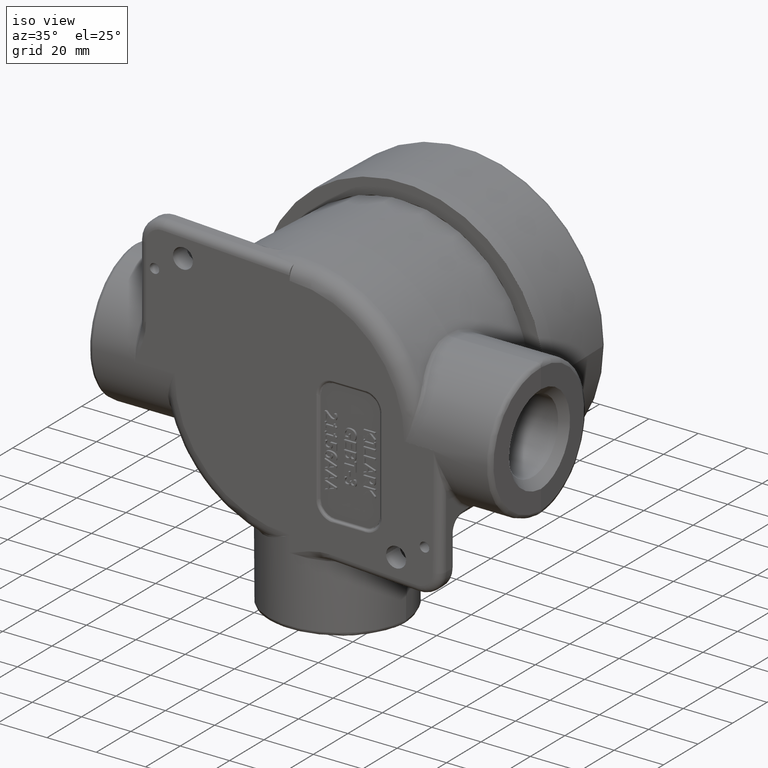
[diagram: clean part render]
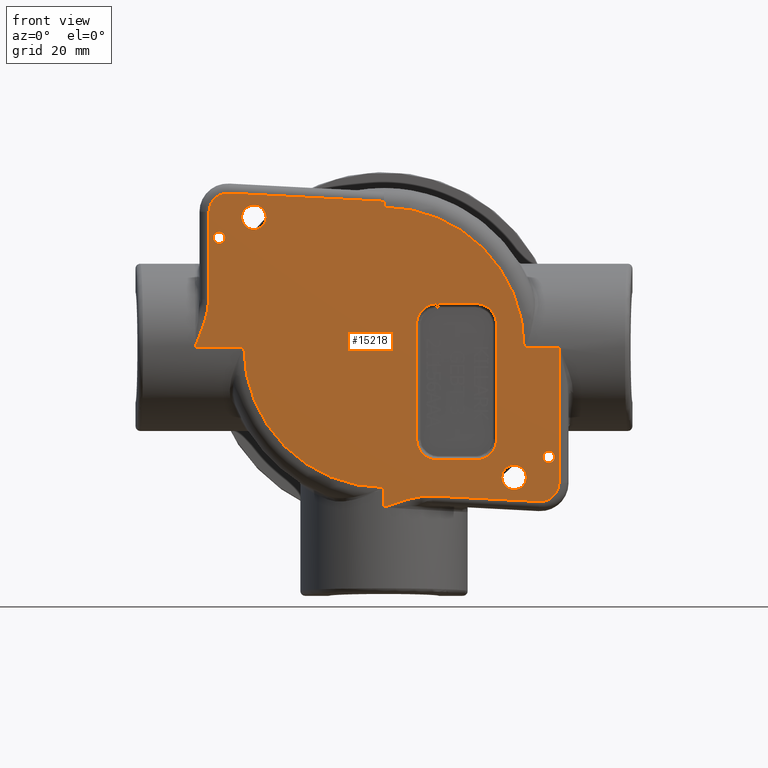
[diagram: tour spotlight — one face highlighted and labeled with its STEP entity id]
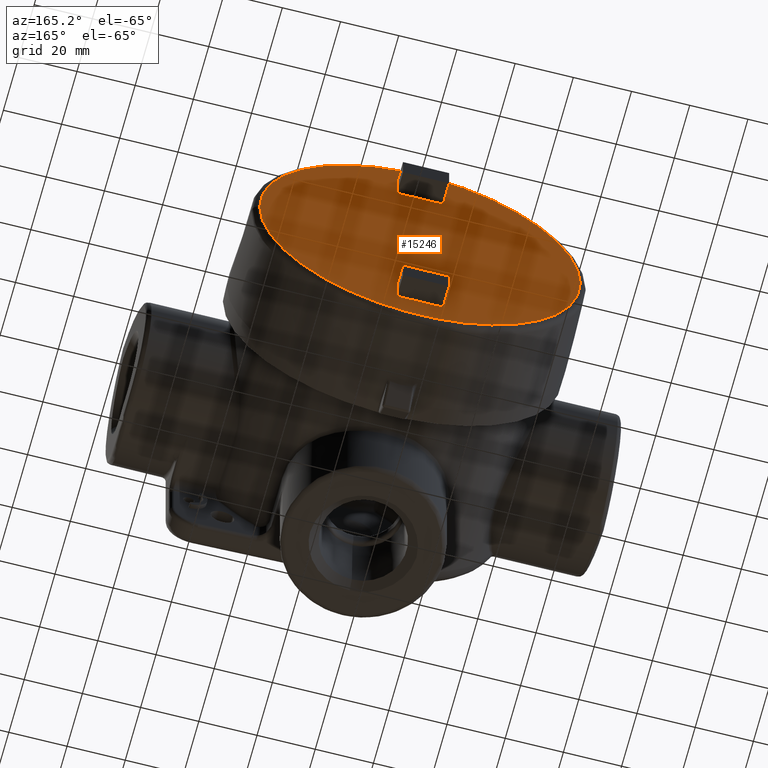
[diagram: tour spotlight — one face highlighted and labeled with its STEP entity id]
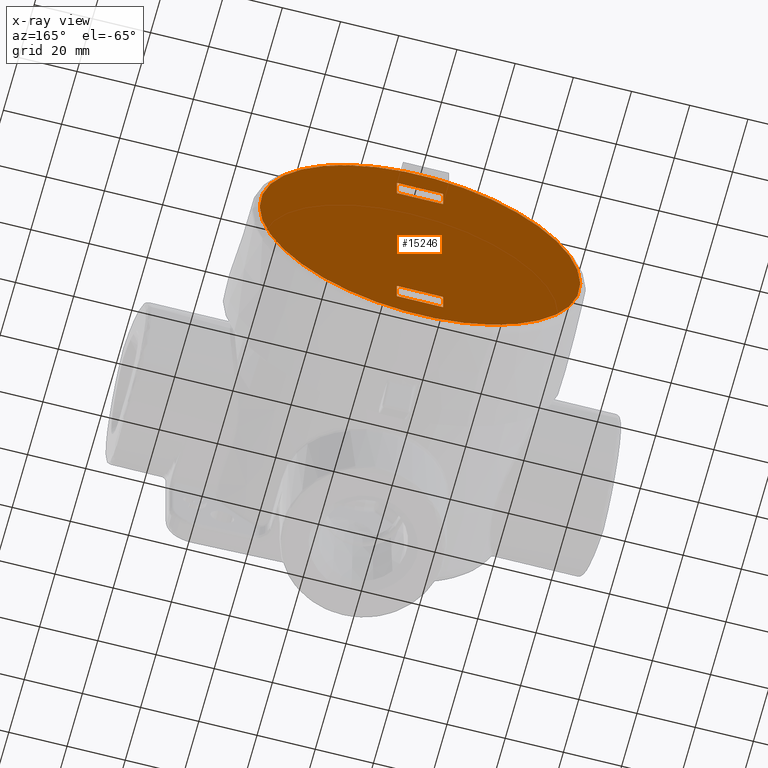
[diagram: x-ray of the same camera — body ghosted, this tour face saturated]
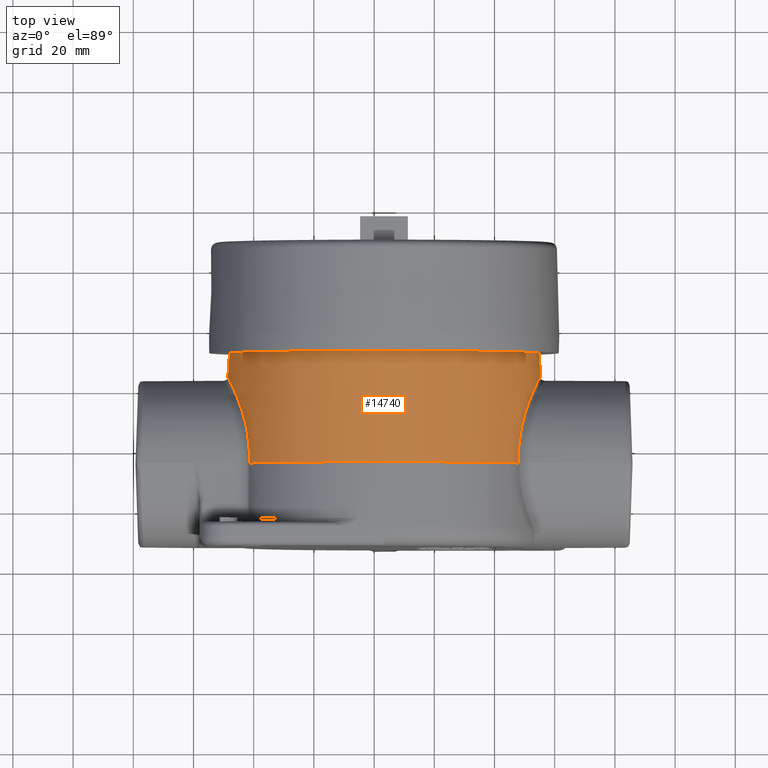
[diagram: tour spotlight — one face highlighted and labeled with its STEP entity id]
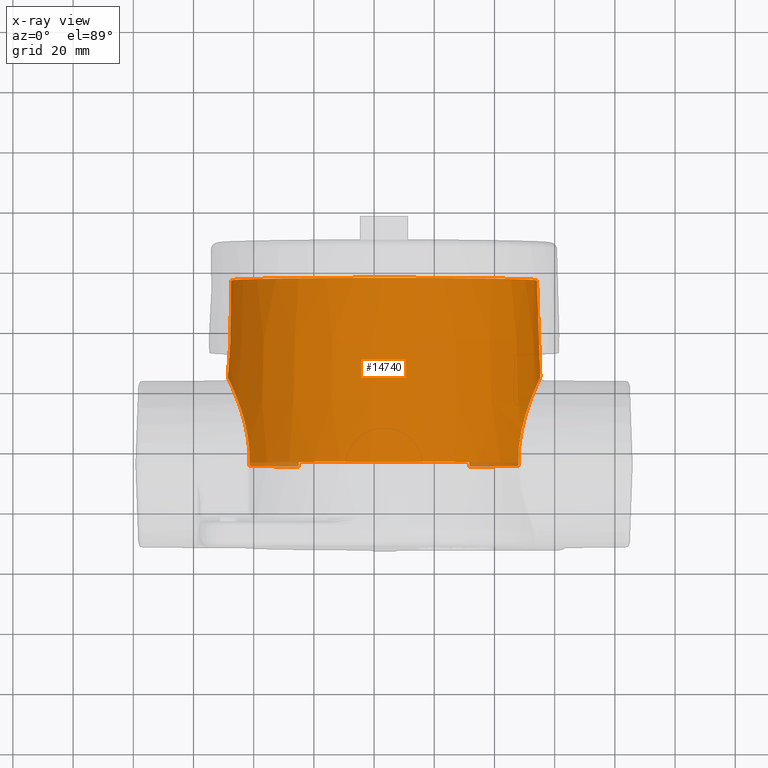
[diagram: x-ray of the same camera — body ghosted, this tour face saturated]
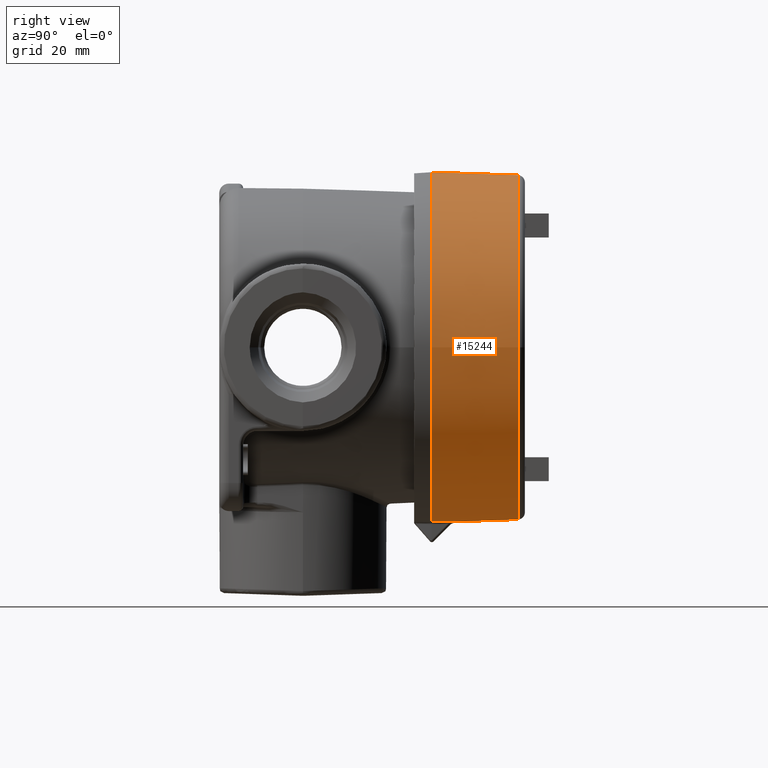
[diagram: tour spotlight — one face highlighted and labeled with its STEP entity id]
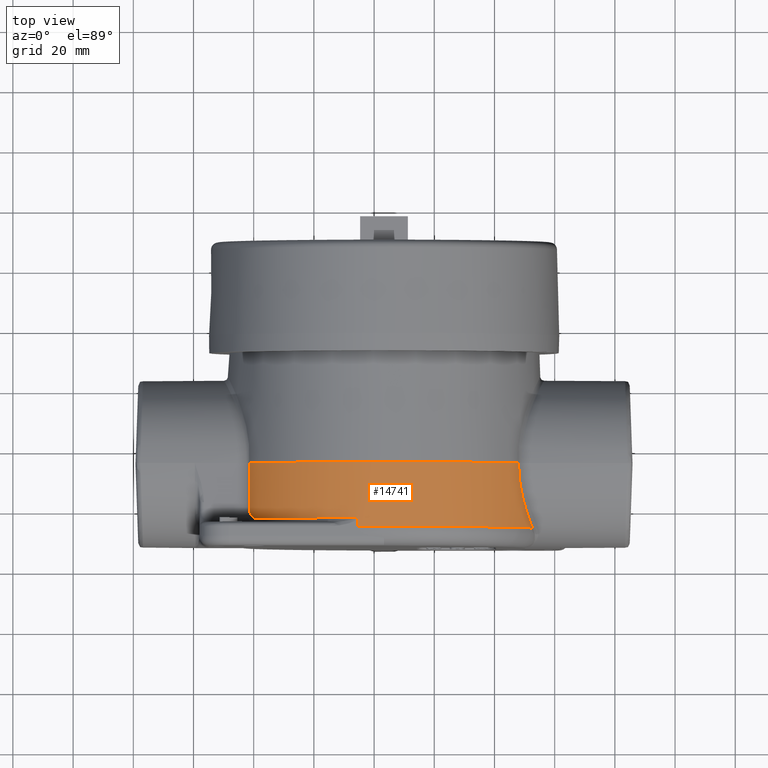
[diagram: tour spotlight — one face highlighted and labeled with its STEP entity id]
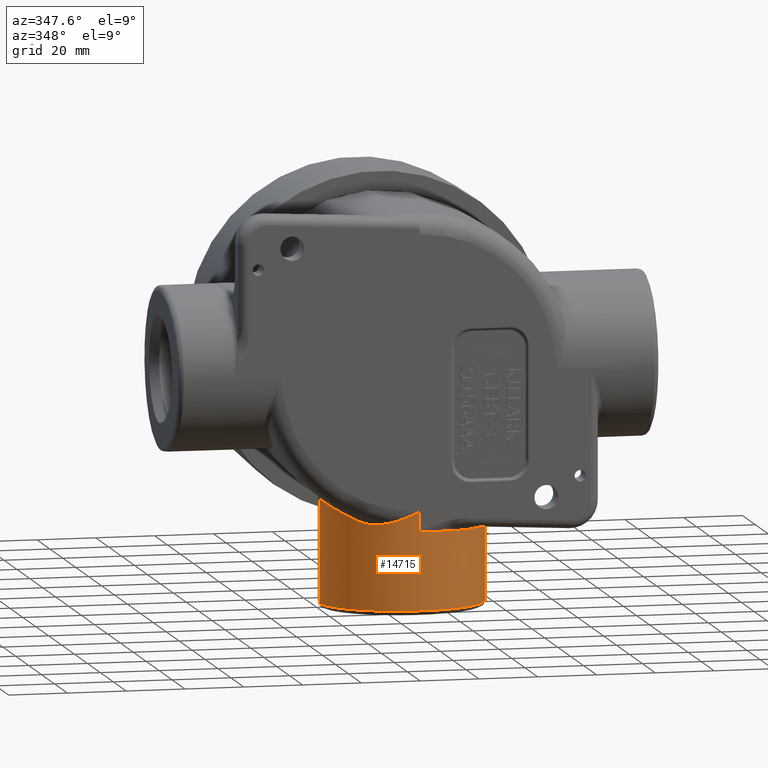
[diagram: tour spotlight — one face highlighted and labeled with its STEP entity id]
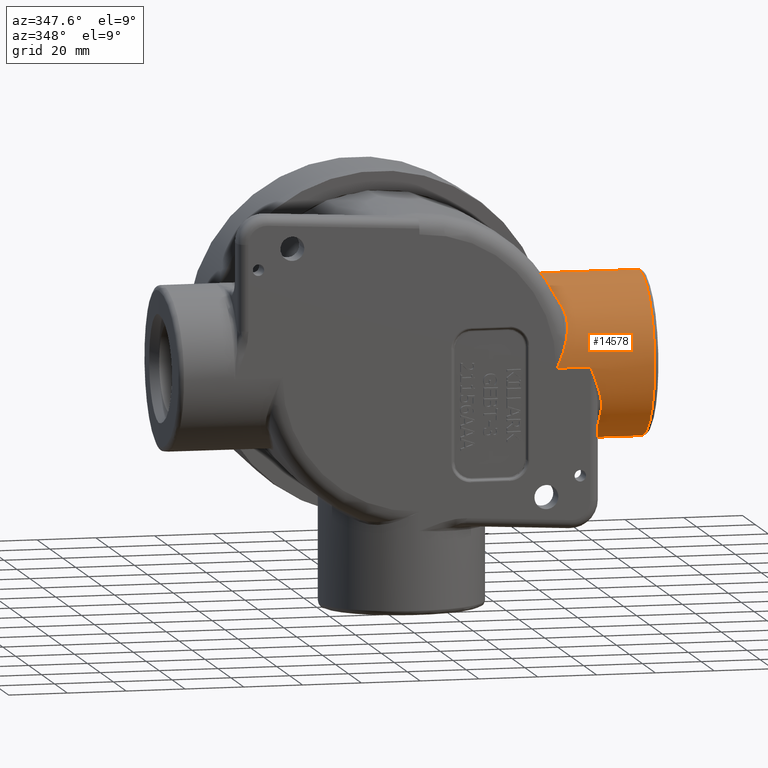
[diagram: tour spotlight — one face highlighted and labeled with its STEP entity id]
A machine part: a face-by-face anatomy tour. The part has 863 B-rep faces; the first image is the clean iso view, then the 7 largest visible faces are spotlighted one at a time (largest first), each with its STEP entity span.

Face 1 — front view, entity #15218. In plain terms, the highlighted planar face has unit normal (0, -1, -0).
Definition (entity closure, byte-faithful):
#168=FACE_BOUND('',#5001,.T.);
#169=FACE_BOUND('',#5002,.T.);
#170=FACE_BOUND('',#5003,.T.);
#171=FACE_BOUND('',#5004,.T.);
#172=FACE_BOUND('',#5005,.T.);
#616=PLANE('',#16237);
#1088=LINE('',#47890,#2363);
#1089=LINE('',#47898,#2364);
#1090=LINE('',#47993,#2365);
#1091=LINE('',#48062,#2366);
#1093=LINE('',#48073,#2368);
#1100=LINE('',#48885,#2375);
#1958=LINE('',#53613,#3233);
#1960=LINE('',#53716,#3235);
#1961=LINE('',#53721,#3236);
#1964=LINE('',#53822,#3239);
#1965=LINE('',#53833,#3240);
#1966=LINE('',#53835,#3241);
#2363=VECTOR('',#17716,0.393700787401575);
#2364=VECTOR('',#17727,0.393700787401575);
#2365=VECTOR('',#17730,0.393700787401575);
#2366=VECTOR('',#17739,0.393700787401575);
#2368=VECTOR('',#17753,0.393700787401575);
#2375=VECTOR('',#17818,0.393700787401575);
#3233=VECTOR('',#19310,0.03);
#3235=VECTOR('',#19320,0.03);
#3236=VECTOR('',#19325,0.03);
#3239=VECTOR('',#19334,0.03);
#3240=VECTOR('',#19355,0.393700787401575);
#3241=VECTOR('',#19356,0.393700787401575);
#4086=FACE_OUTER_BOUND('',#5000,.T.);
#5000=EDGE_LOOP('',(#13759,#13760,#13761,#13762,#13763,#13764,#13765,#13766,
#13767,#13768,#13769,#13770,#13771,#13772));
#5001=EDGE_LOOP('',(#13773));
#5002=EDGE_LOOP('',(#13774));
#5003=EDGE_LOOP('',(#13775));
#5004=EDGE_LOOP('',(#13776));
#5005=EDGE_LOOP('',(#13777,#13778,#13779,#13780,#13781,#13782,#13783,#13784));
#5287=B_SPLINE_CURVE_WITH_KNOTS('',3,(#47951,#47952,#47953,#47954,#47955,
#47956,#47957,#47958,#47959,#47960,#47961,#47962,#47963,#47964,#47965,#47966,
#47967,#47968,#47969,#47970,#47971,#47972,#47973,#47974,#47975,#47976,#47977,
#47978,#47979,#47980,#47981,#47982,#47983,#47984,#47985,#47986,#47987,#47988,
#47989,#47990),.UNSPECIFIED.,.F.,.F.,(4,3,3,3,3,3,3,3,3,3,3,3,3,4),(-7.52382636163822,
-7.52270336475169,-7.49015553682643,-7.4851643232038,-7.42730460180607,
-7.40591047556162,-7.33260803382576,-7.2873273683636,-7.05056393646447,
-6.81373836840074,-6.55315721245906,-6.3398230867949,-5.94261335235464,
-5.86649127861333),.UNSPECIFIED.);
#5289=B_SPLINE_CURVE_WITH_KNOTS('',3,(#48049,#48050,#48051,#48052,#48053,
#48054,#48055,#48056,#48057),.UNSPECIFIED.,.F.,.F.,(4,1,1,1,1,1,4),(0.,
0.474965955560619,0.949931911121239,1.18741488890155,1.42489786668186,1.54363935557201,
1.66238084446217),.UNSPECIFIED.);
#5602=B_SPLINE_CURVE_WITH_KNOTS('',3,(#53659,#53660,#53661,#53662,#53663,
#53664,#53665),.UNSPECIFIED.,.F.,.F.,(4,1,1,1,4),(0.,0.308877060919509,
0.617754121839017,0.849411917528649,1.08106971321828),.UNSPECIFIED.);
#5603=B_SPLINE_CURVE_WITH_KNOTS('',3,(#53699,#53700,#53701,#53702,#53703,
#53704),.UNSPECIFIED.,.F.,.F.,(4,1,1,4),(3.24317808392021,3.70697870941734,
4.01617912641542,4.32537954341351),.UNSPECIFIED.);
#5606=B_SPLINE_CURVE_WITH_KNOTS('',3,(#53768,#53769,#53770,#53771,#53772,
#53773,#53774),.UNSPECIFIED.,.F.,.F.,(4,1,1,1,4),(0.,0.308877060919509,
0.617754121839018,0.84941191752865,1.08106971321828),.UNSPECIFIED.);
#5607=B_SPLINE_CURVE_WITH_KNOTS('',3,(#53808,#53809,#53810,#53811,#53812,
#53813),.UNSPECIFIED.,.F.,.F.,(4,1,1,4),(3.24317808392021,3.5523785009183,
3.86157891791639,4.32537954341351),.UNSPECIFIED.);
#5881=CIRCLE('',#15831,0.1605);
#5882=CIRCLE('',#15833,0.0765);
#5892=CIRCLE('',#15850,0.1605);
#5894=CIRCLE('',#15853,0.0765);
#5897=CIRCLE('',#15859,0.245);
#5903=CIRCLE('',#15869,0.245);
#5922=CIRCLE('',#15899,1.83400540308935);
#5950=CIRCLE('',#16238,1.83400540308935);
#6546=VERTEX_POINT('',#47800);
#6547=VERTEX_POINT('',#47804);
#6561=VERTEX_POINT('',#47869);
#6563=VERTEX_POINT('',#47875);
#6564=VERTEX_POINT('',#47879);
#6566=VERTEX_POINT('',#47888);
#6567=VERTEX_POINT('',#47892);
#6568=VERTEX_POINT('',#47896);
#6569=VERTEX_POINT('',#47944);
#6570=VERTEX_POINT('',#47992);
#6571=VERTEX_POINT('',#48040);
#6572=VERTEX_POINT('',#48047);
#6574=VERTEX_POINT('',#48060);
#6576=VERTEX_POINT('',#48066);
#6577=VERTEX_POINT('',#48071);
#6602=VERTEX_POINT('',#48868);
#6603=VERTEX_POINT('',#48870);
#7334=VERTEX_POINT('',#53606);
#7337=VERTEX_POINT('',#53611);
#7338=VERTEX_POINT('',#53649);
#7341=VERTEX_POINT('',#53697);
#7342=VERTEX_POINT('',#53712);
#7345=VERTEX_POINT('',#53719);
#7346=VERTEX_POINT('',#53758);
#7349=VERTEX_POINT('',#53806);
#7350=VERTEX_POINT('',#53834);
#8238=EDGE_CURVE('',#6546,#6546,#5881,.T.);
#8240=EDGE_CURVE('',#6547,#6547,#5882,.T.);
#8261=EDGE_CURVE('',#6561,#6561,#5892,.T.);
#8264=EDGE_CURVE('',#6563,#6563,#5894,.T.);
#8268=EDGE_CURVE('',#6566,#6564,#1088,.T.);
#8270=EDGE_CURVE('',#6567,#6566,#5897,.T.);
#8272=EDGE_CURVE('',#6568,#6567,#1089,.T.);
#8274=EDGE_CURVE('',#6569,#6568,#5287,.T.);
#8275=EDGE_CURVE('',#6564,#6570,#1090,.T.);
#8279=EDGE_CURVE('',#6572,#6571,#5289,.T.);
#8281=EDGE_CURVE('',#6574,#6572,#1091,.T.);
#8284=EDGE_CURVE('',#6576,#6574,#5903,.T.);
#8287=EDGE_CURVE('',#6577,#6576,#1093,.T.);
#8335=EDGE_CURVE('',#6602,#6603,#5922,.T.);
#8338=EDGE_CURVE('',#6571,#6602,#1100,.T.);
#9497=EDGE_CURVE('',#7337,#7334,#1958,.T.);
#9500=EDGE_CURVE('',#7334,#7338,#5602,.T.);
#9502=EDGE_CURVE('',#7341,#7337,#5603,.T.);
#9506=EDGE_CURVE('',#7338,#7342,#1960,.T.);
#9508=EDGE_CURVE('',#7345,#7341,#1961,.T.);
#9512=EDGE_CURVE('',#7342,#7346,#5606,.T.);
#9514=EDGE_CURVE('',#7349,#7345,#5607,.T.);
#9517=EDGE_CURVE('',#7346,#7349,#1964,.T.);
#9523=EDGE_CURVE('',#6603,#6569,#1965,.T.);
#9524=EDGE_CURVE('',#7350,#6577,#1966,.T.);
#9525=EDGE_CURVE('',#6570,#7350,#5950,.T.);
#13759=ORIENTED_EDGE('',*,*,#8274,.F.);
#13760=ORIENTED_EDGE('',*,*,#9523,.F.);
#13761=ORIENTED_EDGE('',*,*,#8335,.F.);
#13762=ORIENTED_EDGE('',*,*,#8338,.F.);
#13763=ORIENTED_EDGE('',*,*,#8279,.F.);
#13764=ORIENTED_EDGE('',*,*,#8281,.F.);
#13765=ORIENTED_EDGE('',*,*,#8284,.F.);
#13766=ORIENTED_EDGE('',*,*,#8287,.F.);
#13767=ORIENTED_EDGE('',*,*,#9524,.F.);
#13768=ORIENTED_EDGE('',*,*,#9525,.F.);
#13769=ORIENTED_EDGE('',*,*,#8275,.F.);
#13770=ORIENTED_EDGE('',*,*,#8268,.F.);
#13771=ORIENTED_EDGE('',*,*,#8270,.F.);
#13772=ORIENTED_EDGE('',*,*,#8272,.F.);
#13773=ORIENTED_EDGE('',*,*,#8238,.T.);
#13774=ORIENTED_EDGE('',*,*,#8240,.T.);
#13775=ORIENTED_EDGE('',*,*,#8261,.T.);
#13776=ORIENTED_EDGE('',*,*,#8264,.T.);
#13777=ORIENTED_EDGE('',*,*,#9497,.F.);
#13778=ORIENTED_EDGE('',*,*,#9502,.F.);
#13779=ORIENTED_EDGE('',*,*,#9508,.F.);
#13780=ORIENTED_EDGE('',*,*,#9514,.F.);
#13781=ORIENTED_EDGE('',*,*,#9517,.F.);
#13782=ORIENTED_EDGE('',*,*,#9512,.F.);
#13783=ORIENTED_EDGE('',*,*,#9506,.F.);
#13784=ORIENTED_EDGE('',*,*,#9500,.F.);
#15218=ADVANCED_FACE('',(#4086,#168,#169,#170,#171,#172),#616,.T.);
#15831=AXIS2_PLACEMENT_3D('',#47802,#17654,#17655);
#15833=AXIS2_PLACEMENT_3D('',#47806,#17659,#17660);
#15850=AXIS2_PLACEMENT_3D('',#47871,#17701,#17702);
#15853=AXIS2_PLACEMENT_3D('',#47877,#17708,#17709);
#15859=AXIS2_PLACEMENT_3D('',#47894,#17721,#17722);
#15869=AXIS2_PLACEMENT_3D('',#48068,#17745,#17746);
#15899=AXIS2_PLACEMENT_3D('',#48871,#17812,#17813);
#16237=AXIS2_PLACEMENT_3D('',#53832,#19353,#19354);
#16238=AXIS2_PLACEMENT_3D('',#53836,#19357,#19358);
#17654=DIRECTION('center_axis',(0.,1.,0.));
#17655=DIRECTION('ref_axis',(1.,0.,3.49357089519205E-16));
#17659=DIRECTION('center_axis',(0.,1.,0.));
#17660=DIRECTION('ref_axis',(1.,0.,3.49357089519205E-16));
#17701=DIRECTION('center_axis',(0.,1.,0.));
#17702=DIRECTION('ref_axis',(-1.,0.,-2.2689240960447E-16));
#17708=DIRECTION('center_axis',(0.,1.,0.));
#17709=DIRECTION('ref_axis',(-1.,0.,-2.2689240960447E-16));
#17716=DIRECTION('',(0.998629534754574,0.,-0.0523359562429437));
#17721=DIRECTION('center_axis',(0.,1.,0.));
#17722=DIRECTION('ref_axis',(-0.688354575693754,0.,0.725374371012287));
#17727=DIRECTION('',(-1.22464679914735E-16,0.,1.));
#17730=DIRECTION('',(1.22464679914735E-16,0.,-1.));
#17739=DIRECTION('',(-0.998629534754574,0.,0.0523359562429438));
#17745=DIRECTION('center_axis',(0.,1.,0.));
#17746=DIRECTION('ref_axis',(0.688354575693755,0.,-0.725374371012286));
#17753=DIRECTION('',(0.,0.,-1.));
#17812=DIRECTION('center_axis',(0.,1.,0.));
#17813=DIRECTION('ref_axis',(-0.707106781186547,0.,-0.707106781186548));
#17818=DIRECTION('',(0.,0.,1.));
#19310=DIRECTION('',(-1.,0.,0.));
#19320=DIRECTION('',(0.,0.,-1.));
#19325=DIRECTION('',(0.,0.,1.));
#19334=DIRECTION('',(1.,0.,0.));
#19353=DIRECTION('center_axis',(0.,-1.,0.));
#19354=DIRECTION('ref_axis',(0.,0.,-1.));
#19355=DIRECTION('',(-1.,0.,-1.22464679914735E-16));
#19356=DIRECTION('',(1.,0.,0.));
#19357=DIRECTION('center_axis',(0.,1.,0.));
#19358=DIRECTION('ref_axis',(0.707106781186547,0.,0.707106781186548));
#47800=CARTESIAN_POINT('',(1.54079891553482,-3.5,-1.70129891553485));
#47802=CARTESIAN_POINT('Origin',(1.70129891553482,-3.5,-1.70129891553485));
#47804=CARTESIAN_POINT('',(2.07879891553482,-3.5,-1.43429891553485));
#47806=CARTESIAN_POINT('Origin',(2.15529891553482,-3.5,-1.43429891553485));
#47869=CARTESIAN_POINT('',(-1.54079891553482,-3.5,1.70129891553485));
#47871=CARTESIAN_POINT('Origin',(-1.70129891553482,-3.5,1.70129891553485));
#47875=CARTESIAN_POINT('',(-2.07879891553482,-3.5,1.43429891553485));
#47877=CARTESIAN_POINT('Origin',(-2.15529891553482,-3.5,1.43429891553485));
#47879=CARTESIAN_POINT('',(-2.33980241585058E-16,-3.5,1.91059366462203));
#47888=CARTESIAN_POINT('',(-2.03117769072048,-3.5,2.01704317672195));
#47890=CARTESIAN_POINT('',(-0.483053028328208,-3.5,1.93590940111266));
#47892=CARTESIAN_POINT('',(-2.289,-3.5,1.77237894070708));
#47894=CARTESIAN_POINT('Origin',(-2.044,-3.5,1.77237894070708));
#47896=CARTESIAN_POINT('',(-2.289,-3.5,0.626082774080235));
#47898=CARTESIAN_POINT('',(-2.289,-3.5,1.06111134661056));
#47944=CARTESIAN_POINT('',(-2.46184105267714,-3.5,-2.3804533162684E-16));
#47951=CARTESIAN_POINT('Ctrl Pts',(-2.46184105267714,-3.5,-7.91493208661073E-16));
#47952=CARTESIAN_POINT('Ctrl Pts',(-2.46184105267714,-3.5,0.000147392388381712));
#47953=CARTESIAN_POINT('Ctrl Pts',(-2.46184057409865,-3.5,0.000294776754006203));
#47954=CARTESIAN_POINT('Ctrl Pts',(-2.46183962027684,-3.5,0.000442148828869041));
#47955=CARTESIAN_POINT('Ctrl Pts',(-2.46181197565163,-3.5,0.00471343487710206));
#47956=CARTESIAN_POINT('Ctrl Pts',(-2.46138101234647,-3.5,0.00898264169084094));
#47957=CARTESIAN_POINT('Ctrl Pts',(-2.46065012044851,-3.5,0.0131990821991038));
#47958=CARTESIAN_POINT('Ctrl Pts',(-2.46053803808141,-3.5,0.0138456738964731));
#47959=CARTESIAN_POINT('Ctrl Pts',(-2.46041899392782,-3.5,0.0144909836023214));
#47960=CARTESIAN_POINT('Ctrl Pts',(-2.46029345442585,-3.5,0.0151347919540806));
#47961=CARTESIAN_POINT('Ctrl Pts',(-2.45883816095261,-3.5,0.0225980212771797));
#47962=CARTESIAN_POINT('Ctrl Pts',(-2.45651455264645,-3.49999999963825,
0.029872812421667));
#47963=CARTESIAN_POINT('Ctrl Pts',(-2.4539340114906,-3.49999999746107,0.0370535507776852));
#47964=CARTESIAN_POINT('Ctrl Pts',(-2.45297983435435,-3.49999999665604,
0.0397086901251598));
#47965=CARTESIAN_POINT('Ctrl Pts',(-2.45198993557865,-3.49999999562865,
0.0423508855523352));
#47966=CARTESIAN_POINT('Ctrl Pts',(-2.45099365872137,-3.49999999444511,
0.0449846655054614));
#47967=CARTESIAN_POINT('Ctrl Pts',(-2.44758012710762,-3.49999999038998,
0.054008754610721));
#47968=CARTESIAN_POINT('Ctrl Pts',(-2.44409213240069,-3.49999998383766,
0.062934457569151));
#47969=CARTESIAN_POINT('Ctrl Pts',(-2.44052967895246,-3.49999998317269,
0.0718704717324724));
#47970=CARTESIAN_POINT('Ctrl Pts',(-2.43832906654456,-3.49999998276192,
0.077390460675714));
#47971=CARTESIAN_POINT('Ctrl Pts',(-2.43610879357125,-3.49999998256773,
0.0828979254081656));
#47972=CARTESIAN_POINT('Ctrl Pts',(-2.43387663331963,-3.49999998249974,
0.0884043367147479));
#47973=CARTESIAN_POINT('Ctrl Pts',(-2.42220511930081,-3.49999998214425,
0.117196246574906));
#47974=CARTESIAN_POINT('Ctrl Pts',(-2.41020867830397,-3.49999998480223,
0.145959443901539));
#47975=CARTESIAN_POINT('Ctrl Pts',(-2.39865995780921,-3.49999998729052,
0.174848673628273));
#47976=CARTESIAN_POINT('Ctrl Pts',(-2.38710820646973,-3.49999998977946,
0.203745485040738));
#47977=CARTESIAN_POINT('Ctrl Pts',(-2.37600451888584,-3.4999999929285,0.232768427326963));
#47978=CARTESIAN_POINT('Ctrl Pts',(-2.36548652293388,-3.49999999382014,
0.26200868418907));
#47979=CARTESIAN_POINT('Ctrl Pts',(-2.35391348390029,-3.49999999480122,
0.294181983699998));
#47980=CARTESIAN_POINT('Ctrl Pts',(-2.34304978810309,-3.49999999240013,
0.326618407544647));
#47981=CARTESIAN_POINT('Ctrl Pts',(-2.33331631679801,-3.49999998642204,
0.359400617283993));
#47982=CARTESIAN_POINT('Ctrl Pts',(-2.32534766080275,-3.49999998152786,
0.386238951110586));
#47983=CARTESIAN_POINT('Ctrl Pts',(-2.31812126821713,-3.49999997931291,
0.413348020285436));
#47984=CARTESIAN_POINT('Ctrl Pts',(-2.31187606795562,-3.49999997955125,
0.440766986521637));
#47985=CARTESIAN_POINT('Ctrl Pts',(-2.30024804393612,-3.49999997999501,
0.491818735806477));
#47986=CARTESIAN_POINT('Ctrl Pts',(-2.29202426501231,-3.49999999625608,
0.543946019265576));
#47987=CARTESIAN_POINT('Ctrl Pts',(-2.28968192118151,-3.49999999934116,
0.596101600040362));
#47988=CARTESIAN_POINT('Ctrl Pts',(-2.28923302969081,-3.49999999993239,
0.606096800614573));
#47989=CARTESIAN_POINT('Ctrl Pts',(-2.289,-3.5,0.616093000623369));
#47990=CARTESIAN_POINT('Ctrl Pts',(-2.289,-3.5,0.626082774080234));
#47992=CARTESIAN_POINT('',(0.,-3.5,1.83400540308935));
#47993=CARTESIAN_POINT('',(0.,-3.5,6.49743307082779E-17));
#48040=CARTESIAN_POINT('',(-1.44659035406559E-9,-3.5,-2.08366873991912));
#48047=CARTESIAN_POINT('',(0.635764925985179,-3.5,-1.94391269253896));
#48049=CARTESIAN_POINT('Ctrl Pts',(0.635764925985179,-3.5,-1.94391269253896));
#48050=CARTESIAN_POINT('Ctrl Pts',(0.573518858895184,-3.5,-1.94065051439367));
#48051=CARTESIAN_POINT('Ctrl Pts',(0.448062263126654,-3.5,-1.95213204369654));
#48052=CARTESIAN_POINT('Ctrl Pts',(0.29718777464887,-3.5,-1.99103494842087));
#48053=CARTESIAN_POINT('Ctrl Pts',(0.17805563471149,-3.5,-2.02953257987076));
#48054=CARTESIAN_POINT('Ctrl Pts',(0.104210282636742,-3.5,-2.05583048348804));
#48055=CARTESIAN_POINT('Ctrl Pts',(0.0459227616745337,-3.5,-2.07560068851632));
#48056=CARTESIAN_POINT('Ctrl Pts',(0.0155529301126808,-3.5,-2.08463905083499));
#48057=CARTESIAN_POINT('Ctrl Pts',(-1.4522000400097E-9,-3.5,-2.08366874000904));
#48060=CARTESIAN_POINT('',(2.03117769072048,-3.5,-2.01704317672195));
#48062=CARTESIAN_POINT('',(-0.575151878791027,-3.5,-1.88045123190412));
#48066=CARTESIAN_POINT('',(2.289,-3.5,-1.77237894070708));
#48068=CARTESIAN_POINT('Origin',(2.044,-3.5,-1.77237894070708));
#48071=CARTESIAN_POINT('',(2.289,-3.5,0.));
#48073=CARTESIAN_POINT('',(2.289,-3.5,-1.06111134661056));
#48868=CARTESIAN_POINT('',(0.,-3.5,-1.83400540308935));
#48870=CARTESIAN_POINT('',(-1.83400540308935,-3.5,0.));
#48871=CARTESIAN_POINT('Origin',(0.,-3.5,0.));
#48885=CARTESIAN_POINT('',(0.,-3.5,0.));
#53606=CARTESIAN_POINT('',(0.699999999999999,-3.5,0.572663436082351));
#53611=CARTESIAN_POINT('',(1.2,-3.5,0.572663436082351));
#53613=CARTESIAN_POINT('',(1.075,-3.5,0.572663436082351));
#53649=CARTESIAN_POINT('',(0.427336563917646,-3.5,0.299999999999999));
#53659=CARTESIAN_POINT('Ctrl Pts',(0.699999999999999,-3.5,0.572663436082352));
#53660=CARTESIAN_POINT('Ctrl Pts',(0.659464952635237,-3.5,0.572663436082352));
#53661=CARTESIAN_POINT('Ctrl Pts',(0.577628996822551,-3.5,0.5540722313333));
#53662=CARTESIAN_POINT('Ctrl Pts',(0.487800530615685,-3.5,0.482263752135191));
#53663=CARTESIAN_POINT('Ctrl Pts',(0.437745897152057,-3.5,0.39179276559864));
#53664=CARTESIAN_POINT('Ctrl Pts',(0.427336563917646,-3.5,0.330437769719439));
#53665=CARTESIAN_POINT('Ctrl Pts',(0.427336563917646,-3.5,0.299999999999999));
#53697=CARTESIAN_POINT('',(1.47266343608235,-3.5,0.3));
#53699=CARTESIAN_POINT('Ctrl Pts',(1.47266343608235,-3.5,0.299999999999999));
#53700=CARTESIAN_POINT('Ctrl Pts',(1.47266343608235,-3.5,0.361072596809883));
#53701=CARTESIAN_POINT('Ctrl Pts',(1.43677052224524,-3.5,0.463128575386776));
#53702=CARTESIAN_POINT('Ctrl Pts',(1.32164823004973,-3.5,0.554209737266208));
#53703=CARTESIAN_POINT('Ctrl Pts',(1.24057748254568,-3.5,0.572663436082352));
#53704=CARTESIAN_POINT('Ctrl Pts',(1.2,-3.5,0.572663436082352));
#53712=CARTESIAN_POINT('',(0.427336563917647,-3.5,-1.2));
#53716=CARTESIAN_POINT('',(0.427336563917647,-3.5,-0.0750000000000006));
#53719=CARTESIAN_POINT('',(1.47266343608235,-3.5,-1.2));
#53721=CARTESIAN_POINT('',(1.47266343608235,-3.5,-0.825));
#53758=CARTESIAN_POINT('',(0.699999999999999,-3.5,-1.47266343608235));
#53768=CARTESIAN_POINT('Ctrl Pts',(0.427336563917647,-3.5,-1.2));
#53769=CARTESIAN_POINT('Ctrl Pts',(0.427336563917647,-3.5,-1.24053504736476));
#53770=CARTESIAN_POINT('Ctrl Pts',(0.445929324416873,-3.5,-1.32236468725467));
#53771=CARTESIAN_POINT('Ctrl Pts',(0.517737511805584,-3.5,-1.41219626026618));
#53772=CARTESIAN_POINT('Ctrl Pts',(0.608208804176881,-3.5,-1.46225084785046));
#53773=CARTESIAN_POINT('Ctrl Pts',(0.66956223028056,-3.5,-1.47266343608235));
#53774=CARTESIAN_POINT('Ctrl Pts',(0.699999999999999,-3.5,-1.47266343608235));
#53806=CARTESIAN_POINT('',(1.2,-3.5,-1.47266343608235));
#53808=CARTESIAN_POINT('Ctrl Pts',(1.2,-3.5,-1.47266343608235));
#53809=CARTESIAN_POINT('Ctrl Pts',(1.24071506453992,-3.5,-1.47266343608235));
#53810=CARTESIAN_POINT('Ctrl Pts',(1.32224115259861,-3.5,-1.45400855085467));
#53811=CARTESIAN_POINT('Ctrl Pts',(1.4371450578337,-3.5,-1.36232272505469));
#53812=CARTESIAN_POINT('Ctrl Pts',(1.47266343608235,-3.5,-1.26086622381852));
#53813=CARTESIAN_POINT('Ctrl Pts',(1.47266343608235,-3.5,-1.2));
#53822=CARTESIAN_POINT('',(0.824999999999999,-3.5,-1.47266343608235));
#53832=CARTESIAN_POINT('Origin',(-1.06111134661056,-3.5,0.));
#53833=CARTESIAN_POINT('',(-1.73755567330528,-3.5,-2.12789199365363E-16));
#53834=CARTESIAN_POINT('',(1.83400540308935,-3.5,-1.74838271594513E-16));
#53835=CARTESIAN_POINT('',(0.676444326694721,-3.5,0.));
#53836=CARTESIAN_POINT('Origin',(0.,-3.5,0.));

Face 2 — auxiliary view, entity #15246. An x-ray twin of the same camera follows (body ghosted, this face saturated) — the face is partly hidden behind the body. In plain terms, the highlighted planar face has unit normal (-0, 1, -0).
Definition (entity closure, byte-faithful):
#174=FACE_BOUND('',#5035,.T.);
#175=FACE_BOUND('',#5036,.T.);
#627=PLANE('',#16278);
#1976=LINE('',#54418,#3251);
#1977=LINE('',#54420,#3252);
#1978=LINE('',#54422,#3253);
#1979=LINE('',#54423,#3254);
#1980=LINE('',#54426,#3255);
#1981=LINE('',#54428,#3256);
#1982=LINE('',#54430,#3257);
#1983=LINE('',#54431,#3258);
#3251=VECTOR('',#19452,0.625);
#3252=VECTOR('',#19453,0.3125);
#3253=VECTOR('',#19454,0.625);
#3254=VECTOR('',#19455,0.3125);
#3255=VECTOR('',#19456,0.625);
#3256=VECTOR('',#19457,0.3125);
#3257=VECTOR('',#19458,0.625);
#3258=VECTOR('',#19459,0.3125);
#4114=FACE_OUTER_BOUND('',#5034,.T.);
#5034=EDGE_LOOP('',(#13920,#13921));
#5035=EDGE_LOOP('',(#13922,#13923,#13924,#13925));
#5036=EDGE_LOOP('',(#13926,#13927,#13928,#13929));
#5959=CIRCLE('',#16279,2.16863370143865);
#5960=CIRCLE('',#16280,2.16863370143865);
#7369=VERTEX_POINT('',#54412);
#7370=VERTEX_POINT('',#54413);
#7371=VERTEX_POINT('',#54416);
#7372=VERTEX_POINT('',#54417);
#7373=VERTEX_POINT('',#54419);
#7374=VERTEX_POINT('',#54421);
#7375=VERTEX_POINT('',#54424);
#7376=VERTEX_POINT('',#54425);
#7377=VERTEX_POINT('',#54427);
#7378=VERTEX_POINT('',#54429);
#9565=EDGE_CURVE('',#7369,#7370,#5959,.T.);
#9566=EDGE_CURVE('',#7370,#7369,#5960,.T.);
#9567=EDGE_CURVE('',#7371,#7372,#1976,.T.);
#9568=EDGE_CURVE('',#7371,#7373,#1977,.T.);
#9569=EDGE_CURVE('',#7373,#7374,#1978,.T.);
#9570=EDGE_CURVE('',#7372,#7374,#1979,.T.);
#9571=EDGE_CURVE('',#7375,#7376,#1980,.T.);
#9572=EDGE_CURVE('',#7376,#7377,#1981,.T.);
#9573=EDGE_CURVE('',#7378,#7377,#1982,.T.);
#9574=EDGE_CURVE('',#7375,#7378,#1983,.T.);
#13920=ORIENTED_EDGE('',*,*,#9565,.T.);
#13921=ORIENTED_EDGE('',*,*,#9566,.T.);
#13922=ORIENTED_EDGE('',*,*,#9567,.F.);
#13923=ORIENTED_EDGE('',*,*,#9568,.T.);
#13924=ORIENTED_EDGE('',*,*,#9569,.T.);
#13925=ORIENTED_EDGE('',*,*,#9570,.F.);
#13926=ORIENTED_EDGE('',*,*,#9571,.T.);
#13927=ORIENTED_EDGE('',*,*,#9572,.T.);
#13928=ORIENTED_EDGE('',*,*,#9573,.F.);
#13929=ORIENTED_EDGE('',*,*,#9574,.F.);
#15246=ADVANCED_FACE('',(#4114,#174,#175),#627,.T.);
#16278=AXIS2_PLACEMENT_3D('',#54411,#19446,#19447);
#16279=AXIS2_PLACEMENT_3D('',#54414,#19448,#19449);
#16280=AXIS2_PLACEMENT_3D('',#54415,#19450,#19451);
#19446=DIRECTION('center_axis',(0.,0.,1.));
#19447=DIRECTION('ref_axis',(1.,0.,0.));
#19448=DIRECTION('center_axis',(0.,0.,1.));
#19449=DIRECTION('ref_axis',(1.,0.,0.));
#19450=DIRECTION('center_axis',(0.,0.,1.));
#19451=DIRECTION('ref_axis',(1.,0.,0.));
#19452=DIRECTION('',(-1.,0.,0.));
#19453=DIRECTION('',(0.,-1.,0.));
#19454=DIRECTION('',(-1.,0.,0.));
#19455=DIRECTION('',(0.,-1.,0.));
#19456=DIRECTION('',(-1.,0.,0.));
#19457=DIRECTION('',(0.,1.,0.));
#19458=DIRECTION('',(-1.,0.,0.));
#19459=DIRECTION('',(0.,1.,0.));
#54411=CARTESIAN_POINT('Origin',(0.,0.,1.46875));
#54412=CARTESIAN_POINT('',(2.16863370143865,0.,1.46875));
#54413=CARTESIAN_POINT('',(-2.16863370143865,-2.65581032098991E-16,1.46875));
#54414=CARTESIAN_POINT('Origin',(0.,0.,1.46875));
#54415=CARTESIAN_POINT('Origin',(0.,0.,1.46875));
#54416=CARTESIAN_POINT('',(0.3125,1.75,1.46875));
#54417=CARTESIAN_POINT('',(-0.3125,1.75,1.46875));
#54418=CARTESIAN_POINT('',(0.3125,1.75,1.46875));
#54419=CARTESIAN_POINT('',(0.3125,1.4375,1.46875));
#54420=CARTESIAN_POINT('',(0.3125,1.75,1.46875));
#54421=CARTESIAN_POINT('',(-0.3125,1.4375,1.46875));
#54422=CARTESIAN_POINT('',(0.3125,1.4375,1.46875));
#54423=CARTESIAN_POINT('',(-0.3125,1.75,1.46875));
#54424=CARTESIAN_POINT('',(0.3125,-1.75,1.46875));
#54425=CARTESIAN_POINT('',(-0.3125,-1.75,1.46875));
#54426=CARTESIAN_POINT('',(0.3125,-1.75,1.46875));
#54427=CARTESIAN_POINT('',(-0.3125,-1.4375,1.46875));
#54428=CARTESIAN_POINT('',(-0.3125,-1.75,1.46875));
#54429=CARTESIAN_POINT('',(0.3125,-1.4375,1.46875));
#54430=CARTESIAN_POINT('',(0.3125,-1.4375,1.46875));
#54431=CARTESIAN_POINT('',(0.3125,-1.75,1.46875));

Face 3 — top view, entity #14740. An x-ray twin of the same camera follows (body ghosted, this face saturated) — the face is partly hidden behind the body. In plain terms, the highlighted conical surface has half-angle 2 deg.
Definition (entity closure, byte-faithful):
#1103=LINE('',#49275,#2378);
#2378=VECTOR('',#17841,2.06111134661056);
#3299=CONICAL_SURFACE('',#15909,2.06111134661056,0.0349065850398862);
#3608=FACE_OUTER_BOUND('',#4494,.T.);
#4494=EDGE_LOOP('',(#11283,#11284,#11285,#11286,#11287,#11288,#11289,#11290,
#11291,#11292,#11293));
#5294=B_SPLINE_CURVE_WITH_KNOTS('',3,(#48253,#48254,#48255,#48256,#48257,
#48258,#48259,#48260,#48261,#48262,#48263,#48264,#48265),.UNSPECIFIED.,
 .F.,.F.,(4,1,1,1,1,1,1,1,1,1,4),(-9.34754575617219,-8.68868895362585,-8.19454635171611,
-8.02983215107952,-6.71211854598686,-6.38269014471369,-6.13561884375882,
-6.05326174344053,-5.3944049408942,-4.95516707252998,-4.73774182932236),
 .UNSPECIFIED.);
#5295=B_SPLINE_CURVE_WITH_KNOTS('',3,(#48266,#48267,#48268,#48269,#48270,
#48271,#48272,#48273,#48274,#48275,#48276,#48277,#48278),.UNSPECIFIED.,
 .F.,.F.,(4,1,1,1,1,1,1,1,1,1,4),(-4.73774182932236,-4.51592920416575,-4.4061197370747,
-4.07669133580153,-3.19821559907309,-2.75897773070887,-2.26483512879912,
-1.77069252688937,-1.44126412561621,-0.782407323069876,-0.127971533218478),
 .UNSPECIFIED.);
#5306=B_SPLINE_CURVE_WITH_KNOTS('',3,(#48674,#48675,#48676,#48677,#48678,
#48679,#48680,#48681,#48682,#48683,#48684,#48685,#48686,#48687,#48688,#48689,
#48690,#48691,#48692,#48693,#48694),.UNSPECIFIED.,.F.,.F.,(4,1,1,1,1,1,
1,1,1,1,1,1,1,1,1,1,1,1,4),(-9.219570767404,-9.05927773176228,-8.81220652089603,
-8.56513531002979,-7.9062787477198,-7.24742218540982,-6.58856562309984,
-6.1767802716561,-5.92970906078985,-5.27085249847987,-4.39237708206656,
-4.1178535144374,-3.9531393738599,-3.51390166565325,-2.63542624923993,-2.30599796808494,
-1.31771312461997,-0.658856562309984,0.),.UNSPECIFIED.);
#5320=B_SPLINE_CURVE_WITH_KNOTS('',3,(#49199,#49200,#49201,#49202,#49203,
#49204,#49205,#49206,#49207,#49208,#49209,#49210,#49211,#49212,#49213,#49214,
#49215,#49216,#49217,#49218),.UNSPECIFIED.,.F.,.F.,(4,1,1,1,1,1,1,1,1,1,
1,1,1,1,1,1,1,4),(-9.34856814736188,-8.85852466738192,-8.69370059942891,
-8.19922839556988,-8.03440432761687,-7.0454599198988,-6.71581178399278,
-5.83675008824338,-5.39721924036869,-4.95768839249399,-4.51815754461929,
-4.0786266967446,-2.76003415312051,-2.43038601721449,-1.44144160949642,
-1.27661754154341,-0.782145337684376,-0.127277226526289),.UNSPECIFIED.);
#5918=CIRCLE('',#15893,2.08400540308935);
#5920=CIRCLE('',#15896,2.08400540308935);
#5929=CIRCLE('',#15910,2.);
#5930=CIRCLE('',#15911,2.);
#5931=CIRCLE('',#15912,2.08400540308935);
#6583=VERTEX_POINT('',#48219);
#6585=VERTEX_POINT('',#48250);
#6586=VERTEX_POINT('',#48252);
#6595=VERTEX_POINT('',#48665);
#6596=VERTEX_POINT('',#48673);
#6601=VERTEX_POINT('',#48858);
#6609=VERTEX_POINT('',#49162);
#6612=VERTEX_POINT('',#49271);
#6613=VERTEX_POINT('',#49272);
#8301=EDGE_CURVE('',#6585,#6586,#5294,.T.);
#8302=EDGE_CURVE('',#6586,#6583,#5295,.T.);
#8321=EDGE_CURVE('',#6595,#6596,#5306,.T.);
#8330=EDGE_CURVE('',#6585,#6596,#5918,.T.);
#8333=EDGE_CURVE('',#6595,#6601,#5920,.T.);
#8346=EDGE_CURVE('',#6609,#6601,#5320,.T.);
#8353=EDGE_CURVE('',#6612,#6613,#5929,.T.);
#8354=EDGE_CURVE('',#6613,#6612,#5930,.T.);
#8355=EDGE_CURVE('',#6613,#6586,#1103,.T.);
#8356=EDGE_CURVE('',#6609,#6583,#5931,.T.);
#11283=ORIENTED_EDGE('',*,*,#8353,.F.);
#11284=ORIENTED_EDGE('',*,*,#8354,.F.);
#11285=ORIENTED_EDGE('',*,*,#8355,.T.);
#11286=ORIENTED_EDGE('',*,*,#8301,.F.);
#11287=ORIENTED_EDGE('',*,*,#8330,.T.);
#11288=ORIENTED_EDGE('',*,*,#8321,.F.);
#11289=ORIENTED_EDGE('',*,*,#8333,.T.);
#11290=ORIENTED_EDGE('',*,*,#8346,.F.);
#11291=ORIENTED_EDGE('',*,*,#8356,.T.);
#11292=ORIENTED_EDGE('',*,*,#8302,.F.);
#11293=ORIENTED_EDGE('',*,*,#8355,.F.);
#14740=ADVANCED_FACE('',(#3608),#3299,.T.);
#15893=AXIS2_PLACEMENT_3D('',#48854,#17800,#17801);
#15896=AXIS2_PLACEMENT_3D('',#48866,#17806,#17807);
#15909=AXIS2_PLACEMENT_3D('',#49270,#17835,#17836);
#15910=AXIS2_PLACEMENT_3D('',#49273,#17837,#17838);
#15911=AXIS2_PLACEMENT_3D('',#49274,#17839,#17840);
#15912=AXIS2_PLACEMENT_3D('',#49276,#17842,#17843);
#17800=DIRECTION('center_axis',(0.,1.,0.));
#17801=DIRECTION('ref_axis',(-1.,0.,0.));
#17806=DIRECTION('center_axis',(0.,1.,0.));
#17807=DIRECTION('ref_axis',(-1.,0.,0.));
#17835=DIRECTION('center_axis',(0.,-1.,0.));
#17836=DIRECTION('ref_axis',(-1.,0.,0.));
#17837=DIRECTION('center_axis',(0.,1.,0.));
#17838=DIRECTION('ref_axis',(-1.,0.,0.));
#17839=DIRECTION('center_axis',(0.,1.,0.));
#17840=DIRECTION('ref_axis',(-1.,0.,0.));
#17841=DIRECTION('',(0.0348994967025006,-0.999390827019096,-4.27395569285709E-18));
#17842=DIRECTION('center_axis',(0.,1.,0.));
#17843=DIRECTION('ref_axis',(-1.,0.,0.));
#48219=CARTESIAN_POINT('',(1.75923819755494,-2.40560006739428,1.11721059070692));
#48250=CARTESIAN_POINT('',(1.75923819214412,-2.4056,-1.11721059044706));
#48252=CARTESIAN_POINT('',(2.04411697865477,-1.26334497483513,-1.52484545686259E-16));
#48253=CARTESIAN_POINT('Ctrl Pts',(1.75923819214412,-2.4056,-1.11721059044706));
#48254=CARTESIAN_POINT('Ctrl Pts',(1.75577009398647,-2.31920642394,-1.11704402560007));
#48255=CARTESIAN_POINT('Ctrl Pts',(1.7608027707499,-2.16541904898845,-1.09940361382165));
#48256=CARTESIAN_POINT('Ctrl Pts',(1.78569529786514,-2.00222175945459,-1.04736073565606));
#48257=CARTESIAN_POINT('Ctrl Pts',(1.83507125731484,-1.76864573457972,-0.9435373463912));
#48258=CARTESIAN_POINT('Ctrl Pts',(1.90012817224554,-1.5857407096699,-0.799807235641214));
#48259=CARTESIAN_POINT('Ctrl Pts',(1.95967820752555,-1.44408875000472,-0.605782912667391));
#48260=CARTESIAN_POINT('Ctrl Pts',(1.97836694801863,-1.4020476568927,-0.534269323176689));
#48261=CARTESIAN_POINT('Ctrl Pts',(2.00438020640581,-1.34481464714095,-0.423403523708694));
#48262=CARTESIAN_POINT('Ctrl Pts',(2.029588010476,-1.29258224124378,-0.279443958796029));
#48263=CARTESIAN_POINT('Ctrl Pts',(2.04247084949713,-1.26664889628395,-0.112761607860376));
#48264=CARTESIAN_POINT('Ctrl Pts',(2.0441113131962,-1.2633532243644,-0.028080886573093));
#48265=CARTESIAN_POINT('Ctrl Pts',(2.04411575070536,-1.26334536002344,3.05845066286836E-10));
#48266=CARTESIAN_POINT('Ctrl Pts',(2.04411575070536,-1.26334536002344,3.05845066286836E-10));
#48267=CARTESIAN_POINT('Ctrl Pts',(2.04412027775815,-1.26333733698946,0.0286475259723809));
#48268=CARTESIAN_POINT('Ctrl Pts',(2.04328878133469,-1.26501104035968,0.0715433984264098));
#48269=CARTESIAN_POINT('Ctrl Pts',(2.03906886617075,-1.27349166360884,0.156683385065143));
#48270=CARTESIAN_POINT('Ctrl Pts',(2.02460145707468,-1.30284161381949,0.322841165305485));
#48271=CARTESIAN_POINT('Ctrl Pts',(1.98546181698363,-1.38400083406625,0.520064412385326));
#48272=CARTESIAN_POINT('Ctrl Pts',(1.92940624064667,-1.51504578515693,0.706123439798216));
#48273=CARTESIAN_POINT('Ctrl Pts',(1.88116464597137,-1.64149252795761,0.836545588570766));
#48274=CARTESIAN_POINT('Ctrl Pts',(1.83837285204625,-1.77534645503059,0.935333455732602));
#48275=CARTESIAN_POINT('Ctrl Pts',(1.79578475741866,-1.94291852668047,1.02675146296283));
#48276=CARTESIAN_POINT('Ctrl Pts',(1.76127680395731,-2.14581146940838,1.09739143332259));
#48277=CARTESIAN_POINT('Ctrl Pts',(1.75578419189405,-2.31949443282527,1.11704277540699));
#48278=CARTESIAN_POINT('Ctrl Pts',(1.75923822046178,-2.40560006651135,1.11721057229563));
#48665=CARTESIAN_POINT('',(-1.11721059070536,-2.4056000669882,-1.75923819752234));
#48673=CARTESIAN_POINT('',(1.11721059044706,-2.4056,-1.75923819214412));
#48674=CARTESIAN_POINT('Ctrl Pts',(-1.11721063993793,-2.40560006820755,
-1.7592381654634));
#48675=CARTESIAN_POINT('Ctrl Pts',(-1.11717116233594,-2.38451080099526,
-1.7583908739145));
#48676=CARTESIAN_POINT('Ctrl Pts',(-1.11567612574487,-2.33088215188347,
-1.75712355584275));
#48677=CARTESIAN_POINT('Ctrl Pts',(-1.10705640439338,-2.24440288441326,
-1.7590115430408));
#48678=CARTESIAN_POINT('Ctrl Pts',(-1.08008960988453,-2.09605061719261,
-1.76977391940007));
#48679=CARTESIAN_POINT('Ctrl Pts',(-1.01211085189935,-1.90144841426773,
-1.80286230485398));
#48680=CARTESIAN_POINT('Ctrl Pts',(-0.879376921363667,-1.6869961093289,
-1.86424045446543));
#48681=CARTESIAN_POINT('Ctrl Pts',(-0.725663769397245,-1.52965016743438,
-1.92332336783321));
#48682=CARTESIAN_POINT('Ctrl Pts',(-0.590719772615635,-1.43358656706842,
-1.96421296133922));
#48683=CARTESIAN_POINT('Ctrl Pts',(-0.444178396956669,-1.35260368064113,
-2.00061067145205));
#48684=CARTESIAN_POINT('Ctrl Pts',(-0.229775070549112,-1.27385035898482,
-2.03867900284871));
#48685=CARTESIAN_POINT('Ctrl Pts',(0.00708544716790477,-1.25501093515176,
-2.04832022622215));
#48686=CARTESIAN_POINT('Ctrl Pts',(0.175093798753292,-1.27639131591748,
-2.0376190373334));
#48687=CARTESIAN_POINT('Ctrl Pts',(0.28544544631851,-1.29904512146382,-2.02650569152721));
#48688=CARTESIAN_POINT('Ctrl Pts',(0.467546411409925,-1.35734841095561,
-1.99836347923084));
#48689=CARTESIAN_POINT('Ctrl Pts',(0.647047762473384,-1.46482292697435,
-1.94950206366501));
#48690=CARTESIAN_POINT('Ctrl Pts',(0.852148371378279,-1.65215629220066,
-1.8765097376118));
#48691=CARTESIAN_POINT('Ctrl Pts',(0.997207904897965,-1.8597634429992,-1.81018404063126));
#48692=CARTESIAN_POINT('Ctrl Pts',(1.09719242896148,-2.14402728950766,-1.76137385315834));
#48693=CARTESIAN_POINT('Ctrl Pts',(1.11704402566081,-2.31920645544135,-1.75577009525103));
#48694=CARTESIAN_POINT('Ctrl Pts',(1.11721059044706,-2.4056,-1.75923819214412));
#48854=CARTESIAN_POINT('Origin',(0.,-2.4056,0.));
#48858=CARTESIAN_POINT('',(-1.75924749324004,-2.4056,-1.11719594415403));
#48866=CARTESIAN_POINT('Origin',(0.,-2.4056,0.));
#49162=CARTESIAN_POINT('',(-1.75923820233995,-2.4056001269936,1.11721059093672));
#49199=CARTESIAN_POINT('Ctrl Pts',(-1.75923820908921,-2.40560012673477,
1.11721058476101));
#49200=CARTESIAN_POINT('Ctrl Pts',(-1.75665539501681,-2.34123830511434,
1.11708606877347));
#49201=CARTESIAN_POINT('Ctrl Pts',(-1.7577668271184,-2.25524473801037,1.10979957321885));
#49202=CARTESIAN_POINT('Ctrl Pts',(-1.76983054402649,-2.10691000464467,
1.08062969779242));
#49203=CARTESIAN_POINT('Ctrl Pts',(-1.78552900922942,-2.00318567140908,
1.04766024068595));
#49204=CARTESIAN_POINT('Ctrl Pts',(-1.82628733894013,-1.80953359561788,
0.962113223017263));
#49205=CARTESIAN_POINT('Ctrl Pts',(-1.87640756637829,-1.65251393480785,
0.852143212991432));
#49206=CARTESIAN_POINT('Ctrl Pts',(-1.9490300912836,-1.46590836375794,0.648749496369248));
#49207=CARTESIAN_POINT('Ctrl Pts',(-1.99835843618132,-1.35735025237755,
0.467422756329581));
#49208=CARTESIAN_POINT('Ctrl Pts',(-2.03142906584649,-1.28882821314238,
0.253858407614647));
#49209=CARTESIAN_POINT('Ctrl Pts',(-2.04472027075845,-1.26216919028137,
0.0846241671344065));
#49210=CARTESIAN_POINT('Ctrl Pts',(-2.04460379424191,-1.26228304173423,
-0.0847021199631068));
#49211=CARTESIAN_POINT('Ctrl Pts',(-2.02296340926591,-1.30622345727482,
-0.366216045373192));
#49212=CARTESIAN_POINT('Ctrl Pts',(-1.96381170842756,-1.4283302307974,-0.607585500020011));
#49213=CARTESIAN_POINT('Ctrl Pts',(-1.876313607207,-1.65260026371844,-0.852337744399714));
#49214=CARTESIAN_POINT('Ctrl Pts',(-1.82631866054692,-1.80950504160184,
-0.96203232423695));
#49215=CARTESIAN_POINT('Ctrl Pts',(-1.78552310491216,-2.00319109439461,
-1.04769568150209));
#49216=CARTESIAN_POINT('Ctrl Pts',(-1.76047287420244,-2.1686146278343,-1.10016302183494));
#49217=CARTESIAN_POINT('Ctrl Pts',(-1.7557869955595,-2.31959015814222,-1.117045054238));
#49218=CARTESIAN_POINT('Ctrl Pts',(-1.75923822125872,-2.40560034396747,
-1.11721059374893));
#49270=CARTESIAN_POINT('Origin',(0.,-1.75,0.));
#49271=CARTESIAN_POINT('',(-2.,0.,0.));
#49272=CARTESIAN_POINT('',(2.,3.49676543189026E-16,-2.44929359829471E-16));
#49273=CARTESIAN_POINT('Origin',(0.,0.,0.));
#49274=CARTESIAN_POINT('Origin',(0.,0.,0.));
#49275=CARTESIAN_POINT('',(2.06111134661056,-1.75,-2.52413341331291E-16));
#49276=CARTESIAN_POINT('Origin',(0.,-2.4056,0.));

Face 4 — right view, entity #15244. In plain terms, the highlighted conical surface has half-angle 1.5 deg.
Definition (entity closure, byte-faithful):
#1975=LINE('',#54385,#3250);
#3250=VECTOR('',#19437,2.291875);
#3300=CONICAL_SURFACE('',#16272,2.291875,0.0261799387799149);
#4112=FACE_OUTER_BOUND('',#5032,.T.);
#5032=EDGE_LOOP('',(#13907,#13908,#13909,#13910,#13911,#13912,#13913,#13914));
#5617=B_SPLINE_CURVE_WITH_KNOTS('',3,(#54367,#54368,#54369,#54370,#54371,
#54372,#54373,#54374,#54375,#54376),.UNSPECIFIED.,.F.,.F.,(4,2,2,2,4),(0.,
0.25,0.5,0.75,1.),.UNSPECIFIED.);
#5618=B_SPLINE_CURVE_WITH_KNOTS('',3,(#54378,#54379,#54380,#54381),
 .UNSPECIFIED.,.F.,.F.,(4,4),(0.,1.),.UNSPECIFIED.);
#5619=B_SPLINE_CURVE_WITH_KNOTS('',3,(#54389,#54390,#54391,#54392),
 .UNSPECIFIED.,.F.,.F.,(4,4),(0.,1.),.UNSPECIFIED.);
#5955=CIRCLE('',#16273,2.291875);
#5956=CIRCLE('',#16274,2.2623515756551);
#5957=CIRCLE('',#16275,2.291875);
#7361=VERTEX_POINT('',#54365);
#7362=VERTEX_POINT('',#54366);
#7363=VERTEX_POINT('',#54377);
#7364=VERTEX_POINT('',#54382);
#7365=VERTEX_POINT('',#54384);
#7366=VERTEX_POINT('',#54387);
#9555=EDGE_CURVE('',#7361,#7362,#5617,.T.);
#9556=EDGE_CURVE('',#7362,#7363,#5618,.T.);
#9557=EDGE_CURVE('',#7363,#7364,#5955,.F.);
#9558=EDGE_CURVE('',#7364,#7365,#1975,.T.);
#9559=EDGE_CURVE('',#7365,#7365,#5956,.T.);
#9560=EDGE_CURVE('',#7364,#7366,#5957,.F.);
#9561=EDGE_CURVE('',#7366,#7361,#5619,.T.);
#13907=ORIENTED_EDGE('',*,*,#9555,.T.);
#13908=ORIENTED_EDGE('',*,*,#9556,.T.);
#13909=ORIENTED_EDGE('',*,*,#9557,.T.);
#13910=ORIENTED_EDGE('',*,*,#9558,.T.);
#13911=ORIENTED_EDGE('',*,*,#9559,.T.);
#13912=ORIENTED_EDGE('',*,*,#9558,.F.);
#13913=ORIENTED_EDGE('',*,*,#9560,.T.);
#13914=ORIENTED_EDGE('',*,*,#9561,.T.);
#15244=ADVANCED_FACE('',(#4112),#3300,.T.);
#16272=AXIS2_PLACEMENT_3D('',#54364,#19433,#19434);
#16273=AXIS2_PLACEMENT_3D('',#54383,#19435,#19436);
#16274=AXIS2_PLACEMENT_3D('',#54386,#19438,#19439);
#16275=AXIS2_PLACEMENT_3D('',#54388,#19440,#19441);
#19433=DIRECTION('center_axis',(0.,0.,-1.));
#19434=DIRECTION('ref_axis',(1.,0.,0.));
#19435=DIRECTION('center_axis',(0.,0.,-1.));
#19436=DIRECTION('ref_axis',(0.0941577830285561,-0.995557287098612,0.));
#19437=DIRECTION('',(0.0261769483078732,-3.20575159566826E-18,0.999657324975557));
#19438=DIRECTION('center_axis',(0.,0.,-1.));
#19439=DIRECTION('ref_axis',(-1.,0.,0.));
#19440=DIRECTION('center_axis',(0.,0.,-1.));
#19441=DIRECTION('ref_axis',(0.0941577830285561,-0.995557287098612,0.));
#54364=CARTESIAN_POINT('Origin',(0.,0.,0.25));
#54365=CARTESIAN_POINT('',(-0.207316653940802,-2.27385742475142,0.577893423970053));
#54366=CARTESIAN_POINT('',(0.207316653940807,-2.27385742475143,0.577893423969807));
#54367=CARTESIAN_POINT('Ctrl Pts',(-0.207316653940836,-2.27385742475142,
0.577893423969994));
#54368=CARTESIAN_POINT('Ctrl Pts',(-0.172952527067344,-2.27707885298468,
0.574534791510589));
#54369=CARTESIAN_POINT('Ctrl Pts',(-0.138260175190087,-2.2795177954298,
0.571991986747983));
#54370=CARTESIAN_POINT('Ctrl Pts',(-0.0689453056210058,-2.28275433235185,
0.568617626067141));
#54371=CARTESIAN_POINT('Ctrl Pts',(-0.0342320933344148,-2.28356186731145,
0.567775706263139));
#54372=CARTESIAN_POINT('Ctrl Pts',(0.0353066028894556,-2.28354504765363,
0.567793242123084));
#54373=CARTESIAN_POINT('Ctrl Pts',(0.0700813047138276,-2.28271585385408,
0.568657743049717));
#54374=CARTESIAN_POINT('Ctrl Pts',(0.139021210952633,-2.27946728881877,
0.572044644192545));
#54375=CARTESIAN_POINT('Ctrl Pts',(0.173274371978405,-2.27704868197853,
0.574566247533586));
#54376=CARTESIAN_POINT('Ctrl Pts',(0.207316653940815,-2.27385742475142,
0.577893423969993));
#54377=CARTESIAN_POINT('',(0.215797868978566,-2.28169285736913,0.25));
#54378=CARTESIAN_POINT('Ctrl Pts',(0.207316653940786,-2.27385742475142,
0.577893423970236));
#54379=CARTESIAN_POINT('Ctrl Pts',(0.210143593189373,-2.27647361369759,
0.468595717357628));
#54380=CARTESIAN_POINT('Ctrl Pts',(0.212970665364124,-2.27908540998569,
0.359297908811707));
#54381=CARTESIAN_POINT('Ctrl Pts',(0.215797868983298,-2.28169285736868,
0.25));
#54382=CARTESIAN_POINT('',(-2.291875,2.80673738279584E-16,0.25));
#54383=CARTESIAN_POINT('Origin',(1.31128703695885E-16,6.99353086378051E-16,
0.25));
#54384=CARTESIAN_POINT('',(-2.2623515756551,0.,1.37745408890386));
#54385=CARTESIAN_POINT('',(-2.291875,2.80673738279584E-16,0.25));
#54386=CARTESIAN_POINT('Origin',(0.,0.,1.37745408890386));
#54387=CARTESIAN_POINT('',(-0.215797868978565,-2.28169285736913,0.25));
#54388=CARTESIAN_POINT('Origin',(1.31128703695885E-16,6.99353086378051E-16,
0.25));
#54389=CARTESIAN_POINT('Ctrl Pts',(-0.215797868983298,-2.28169285736868,
0.25));
#54390=CARTESIAN_POINT('Ctrl Pts',(-0.212970665364122,-2.27908540998569,
0.359297908811786));
#54391=CARTESIAN_POINT('Ctrl Pts',(-0.210143593189375,-2.27647361369759,
0.468595717357547));
#54392=CARTESIAN_POINT('Ctrl Pts',(-0.207316653940786,-2.27385742475142,
0.577893423970235));

Face 5 — top view, entity #14741. In plain terms, the highlighted cylindrical surface (partial cylindrical patch) has radius 52.9337 mm, axis along (-0, 1, 0).
Definition (entity closure, byte-faithful):
#717=CYLINDRICAL_SURFACE('',#15913,2.08400540308935);
#1044=LINE('',#26253,#2319);
#1101=LINE('',#49222,#2376);
#2319=VECTOR('',#17330,0.393700787401575);
#2376=VECTOR('',#17827,0.393700787401575);
#3609=FACE_OUTER_BOUND('',#4495,.T.);
#4495=EDGE_LOOP('',(#11294,#11295,#11296,#11297,#11298,#11299,#11300,#11301));
#5241=B_SPLINE_CURVE_WITH_KNOTS('',3,(#26211,#26212,#26213,#26214,#26215,
#26216,#26217,#26218,#26219,#26220),.UNSPECIFIED.,.F.,.F.,(4,2,2,2,4),(-0.000213468696220494,
0.,0.0107382741608194,0.0218311695073733,0.0475180056534356),
 .UNSPECIFIED.);
#5298=B_SPLINE_CURVE_WITH_KNOTS('',3,(#48389,#48390,#48391,#48392,#48393,
#48394,#48395),.UNSPECIFIED.,.F.,.F.,(4,1,1,1,4),(-2.45391765873169,-2.10335813976005,
-1.75279844980004,-1.05167906988002,0.),.UNSPECIFIED.);
#5321=B_SPLINE_CURVE_WITH_KNOTS('',3,(#49261,#49262,#49263,#49264,#49265,
#49266,#49267),.UNSPECIFIED.,.F.,.F.,(4,1,1,1,4),(-0.607899200702692,-0.434213714787637,
-0.260528228872582,-0.173685485915055,0.),.UNSPECIFIED.);
#5928=CIRCLE('',#15908,2.08400540308935);
#5931=CIRCLE('',#15912,2.08400540308935);
#5932=CIRCLE('',#15914,2.08400540308935);
#6487=VERTEX_POINT('',#26209);
#6488=VERTEX_POINT('',#26210);
#6491=VERTEX_POINT('',#26242);
#6583=VERTEX_POINT('',#48219);
#6588=VERTEX_POINT('',#48341);
#6609=VERTEX_POINT('',#49162);
#6610=VERTEX_POINT('',#49220);
#6611=VERTEX_POINT('',#49259);
#8077=EDGE_CURVE('',#6487,#6488,#5241,.F.);
#8083=EDGE_CURVE('',#6487,#6491,#1044,.T.);
#8306=EDGE_CURVE('',#6583,#6588,#5298,.T.);
#8348=EDGE_CURVE('',#6610,#6609,#1101,.T.);
#8351=EDGE_CURVE('',#6611,#6610,#5321,.T.);
#8352=EDGE_CURVE('',#6488,#6611,#5928,.T.);
#8356=EDGE_CURVE('',#6609,#6583,#5931,.T.);
#8357=EDGE_CURVE('',#6588,#6491,#5932,.T.);
#11294=ORIENTED_EDGE('',*,*,#8306,.F.);
#11295=ORIENTED_EDGE('',*,*,#8356,.F.);
#11296=ORIENTED_EDGE('',*,*,#8348,.F.);
#11297=ORIENTED_EDGE('',*,*,#8351,.F.);
#11298=ORIENTED_EDGE('',*,*,#8352,.F.);
#11299=ORIENTED_EDGE('',*,*,#8077,.F.);
#11300=ORIENTED_EDGE('',*,*,#8083,.T.);
#11301=ORIENTED_EDGE('',*,*,#8357,.F.);
#14741=ADVANCED_FACE('',(#3609),#717,.T.);
#15908=AXIS2_PLACEMENT_3D('',#49269,#17833,#17834);
#15912=AXIS2_PLACEMENT_3D('',#49276,#17842,#17843);
#15913=AXIS2_PLACEMENT_3D('',#49277,#17844,#17845);
#15914=AXIS2_PLACEMENT_3D('',#49278,#17846,#17847);
#17330=DIRECTION('',(7.01871967563013E-17,-1.,-4.10374770674738E-16));
#17827=DIRECTION('',(-3.51454896082648E-16,1.,2.23188599651475E-16));
#17833=DIRECTION('center_axis',(-1.82892759761091E-30,-1.,-1.29666045940149E-31));
#17834=DIRECTION('ref_axis',(-0.513236269863804,0.,0.858247360203507));
#17842=DIRECTION('center_axis',(0.,1.,0.));
#17843=DIRECTION('ref_axis',(-1.,0.,0.));
#17844=DIRECTION('center_axis',(0.,1.,0.));
#17845=DIRECTION('ref_axis',(-1.,0.,0.));
#17846=DIRECTION('center_axis',(0.,-1.,0.));
#17847=DIRECTION('ref_axis',(0.707106781186547,0.,0.707106781186548));
#26209=CARTESIAN_POINT('',(-0.351330003728475,-3.15567672701824,2.05417763316268));
#26210=CARTESIAN_POINT('',(-0.358058770758835,-3.1375,2.05301544971982));
#26211=CARTESIAN_POINT('Ctrl Pts',(-0.358058770758833,-3.13749999999986,
2.05301544971982));
#26212=CARTESIAN_POINT('Ctrl Pts',(-0.358038253828572,-3.13751873634145,
2.05301902800114));
#26213=CARTESIAN_POINT('Ctrl Pts',(-0.358017783169403,-3.13753752413523,
2.05302259789558));
#26214=CARTESIAN_POINT('Ctrl Pts',(-0.356969908445913,-3.1385040745332,
2.05320532152092));
#26215=CARTESIAN_POINT('Ctrl Pts',(-0.356075246085833,-3.13956871543777,
2.05336055227058));
#26216=CARTESIAN_POINT('Ctrl Pts',(-0.354499926659729,-3.14193368195942,
2.05363311767516));
#26217=CARTESIAN_POINT('Ctrl Pts',(-0.353836823032617,-3.14322624090746,
2.05374738507876));
#26218=CARTESIAN_POINT('Ctrl Pts',(-0.352050220922854,-3.1476822963378,
2.05405471324877));
#26219=CARTESIAN_POINT('Ctrl Pts',(-0.351330003728366,-3.15141607300313,
2.05417763316268));
#26220=CARTESIAN_POINT('Ctrl Pts',(-0.351330003728365,-3.15567672701793,
2.05417763316268));
#26242=CARTESIAN_POINT('',(-0.351330003728364,-3.25,2.05417763316268));
#26253=CARTESIAN_POINT('',(-0.351330003728364,-2.4056,2.05417763316268));
#48219=CARTESIAN_POINT('',(1.75923819755494,-2.40560006739428,1.11721059070692));
#48341=CARTESIAN_POINT('',(1.94292116231823,-3.24999999999999,0.753747886976514));
#48389=CARTESIAN_POINT('Ctrl Pts',(1.75924749324004,-2.40560006739309,1.11719594415403));
#48390=CARTESIAN_POINT('Ctrl Pts',(1.7592474949065,-2.45165639976593,1.11719594155937));
#48391=CARTESIAN_POINT('Ctrl Pts',(1.76266405967595,-2.54336489936551,1.11187636999033));
#48392=CARTESIAN_POINT('Ctrl Pts',(1.7831334618027,-2.72595859434848,1.07901390915801));
#48393=CARTESIAN_POINT('Ctrl Pts',(1.8393866473448,-2.98098897946929,0.984616819928986));
#48394=CARTESIAN_POINT('Ctrl Pts',(1.90581789717863,-3.16048157511554,0.84938824667293));
#48395=CARTESIAN_POINT('Ctrl Pts',(1.94292116231823,-3.24999999999998,0.753747886976509));
#49162=CARTESIAN_POINT('',(-1.75923820233995,-2.4056001269936,1.11721059093672));
#49220=CARTESIAN_POINT('',(-1.75924749324004,-3.,1.11719594415403));
#49222=CARTESIAN_POINT('',(-1.75924749324004,-2.4056,1.11719594415403));
#49259=CARTESIAN_POINT('',(-1.66640048891939,-3.1375,1.2514743028264));
#49261=CARTESIAN_POINT('Ctrl Pts',(-1.66640048891939,-3.1375,1.2514743028264));
#49262=CARTESIAN_POINT('Ctrl Pts',(-1.67976752063286,-3.1375,1.23367543301946));
#49263=CARTESIAN_POINT('Ctrl Pts',(-1.70599515699014,-3.13030704907183,
1.19752490685926));
#49264=CARTESIAN_POINT('Ctrl Pts',(-1.73376150774423,-3.10110324658744,
1.15656112434835));
#49265=CARTESIAN_POINT('Ctrl Pts',(-1.7536906968346,-3.05694789858383,1.12602135788802));
#49266=CARTESIAN_POINT('Ctrl Pts',(-1.75924749324004,-3.022793370855,1.11719594415403));
#49267=CARTESIAN_POINT('Ctrl Pts',(-1.75924749324004,-3.,1.11719594415403));
#49269=CARTESIAN_POINT('Origin',(0.,-3.1375,0.));
#49276=CARTESIAN_POINT('Origin',(0.,-2.4056,0.));
#49277=CARTESIAN_POINT('Origin',(0.,-2.4056,0.));
#49278=CARTESIAN_POINT('Origin',(0.,-3.25,0.));

Face 6 — auxiliary view, entity #14715. In plain terms, the highlighted cylindrical surface (partial cylindrical patch) has radius 27.7876 mm, axis along (-0, -0, 1).
Definition (entity closure, byte-faithful):
#88=ELLIPSE('',#15669,1.09567041500231,1.094);
#90=ELLIPSE('',#15877,1.09459284491548,1.094);
#714=CYLINDRICAL_SURFACE('',#15876,1.094);
#1097=LINE('',#48082,#2372);
#1098=LINE('',#48103,#2373);
#1099=LINE('',#48106,#2374);
#2372=VECTOR('',#17765,0.393700787401575);
#2373=VECTOR('',#17766,0.393700787401575);
#2374=VECTOR('',#17769,0.393700787401575);
#3583=FACE_OUTER_BOUND('',#4467,.T.);
#4467=EDGE_LOOP('',(#11163,#11164,#11165,#11166,#11167,#11168,#11169));
#5290=B_SPLINE_CURVE_WITH_KNOTS('',3,(#48084,#48085,#48086,#48087,#48088,
#48089,#48090,#48091,#48092,#48093),.UNSPECIFIED.,.F.,.F.,(4,1,1,1,1,1,
1,4),(7.18186034454102E-13,0.316521114564088,0.949563343690828,1.58260557281757,
1.89912668738094,2.05738724466262,2.13651752330346,2.21564780194431),
 .UNSPECIFIED.);
#5291=B_SPLINE_CURVE_WITH_KNOTS('',3,(#48095,#48096,#48097,#48098,#48099,
#48100,#48101),.UNSPECIFIED.,.F.,.F.,(4,1,1,1,4),(0.127751279986462,0.829261034392832,
1.1800160104905,1.88152596268585,2.5830359148812),.UNSPECIFIED.);
#6446=VERTEX_POINT('',#25870);
#6473=VERTEX_POINT('',#26073);
#6578=VERTEX_POINT('',#48081);
#6579=VERTEX_POINT('',#48083);
#6580=VERTEX_POINT('',#48094);
#6581=VERTEX_POINT('',#48102);
#6582=VERTEX_POINT('',#48104);
#8058=EDGE_CURVE('',#6473,#6446,#88,.T.);
#8291=EDGE_CURVE('',#6578,#6473,#1097,.T.);
#8292=EDGE_CURVE('',#6579,#6578,#5290,.T.);
#8293=EDGE_CURVE('',#6580,#6579,#5291,.T.);
#8294=EDGE_CURVE('',#6581,#6580,#1098,.T.);
#8295=EDGE_CURVE('',#6582,#6581,#90,.T.);
#8296=EDGE_CURVE('',#6446,#6582,#1099,.T.);
#11163=ORIENTED_EDGE('',*,*,#8058,.F.);
#11164=ORIENTED_EDGE('',*,*,#8291,.F.);
#11165=ORIENTED_EDGE('',*,*,#8292,.F.);
#11166=ORIENTED_EDGE('',*,*,#8293,.F.);
#11167=ORIENTED_EDGE('',*,*,#8294,.F.);
#11168=ORIENTED_EDGE('',*,*,#8295,.F.);
#11169=ORIENTED_EDGE('',*,*,#8296,.F.);
#14715=ADVANCED_FACE('',(#3583),#714,.T.);
#15669=AXIS2_PLACEMENT_3D('',#26078,#17288,#17289);
#15876=AXIS2_PLACEMENT_3D('',#48080,#17763,#17764);
#15877=AXIS2_PLACEMENT_3D('',#48105,#17767,#17768);
#17288=DIRECTION('center_axis',(0.0551977825307092,-2.3463912355686E-18,
0.998475440260647));
#17289=DIRECTION('ref_axis',(0.998475440260647,0.,-0.0551977825307092));
#17763=DIRECTION('center_axis',(-6.12323399573677E-17,0.,1.));
#17764=DIRECTION('ref_axis',(0.,-1.,0.));
#17765=DIRECTION('',(6.12323399573677E-17,0.,-1.));
#17766=DIRECTION('',(-6.12323399573677E-17,0.,1.));
#17767=DIRECTION('center_axis',(0.,-0.0329079199613435,-0.999458387729983));
#17768=DIRECTION('ref_axis',(-2.01502894236282E-18,-0.999458387729983,0.0329079199613435));
#17769=DIRECTION('',(6.12323399573677E-17,0.,-1.));
#25870=CARTESIAN_POINT('',(1.094,-2.4056,-2.15632612592428));
#26073=CARTESIAN_POINT('',(-2.62679582044771E-17,-3.4996,-2.09584754863165));
#26078=CARTESIAN_POINT('Origin',(1.74838271594513E-16,-2.4056,-2.09584754863165));
#48080=CARTESIAN_POINT('Origin',(1.99005104861445E-16,-2.4056,-3.25));
#48081=CARTESIAN_POINT('',(-1.32341325875643E-16,-3.4996,-1.84949217163543));
#48082=CARTESIAN_POINT('',(0.,-3.4996,-3.25));
#48083=CARTESIAN_POINT('',(-0.738098086254043,-3.21309440559556,-1.98953623249655));
#48084=CARTESIAN_POINT('Ctrl Pts',(-0.738098086254341,-3.21309440559528,
-1.98953623249643));
#48085=CARTESIAN_POINT('Ctrl Pts',(-0.709911101024261,-3.23885899258368,
-2.00097102423945));
#48086=CARTESIAN_POINT('Ctrl Pts',(-0.618094829430408,-3.31459055284052,
-2.02403887146982));
#48087=CARTESIAN_POINT('Ctrl Pts',(-0.442901019502746,-3.41536064358173,
-2.01181513112914));
#48088=CARTESIAN_POINT('Ctrl Pts',(-0.257824876435398,-3.47341141184725,
-1.95492248868469));
#48089=CARTESIAN_POINT('Ctrl Pts',(-0.129437874888679,-3.49298317171892,
-1.90035985489673));
#48090=CARTESIAN_POINT('Ctrl Pts',(-0.0659222804749613,-3.49787561964669,
-1.8710582279461));
#48091=CARTESIAN_POINT('Ctrl Pts',(-0.0292978293753967,-3.49932674875655,
-1.85516230018352));
#48092=CARTESIAN_POINT('Ctrl Pts',(-0.0099325682128385,-3.4996,-1.84949217163543));
#48093=CARTESIAN_POINT('Ctrl Pts',(-2.42735587142065E-16,-3.4996,-1.84949217163543));
#48094=CARTESIAN_POINT('',(-1.09399999999999,-2.40560007458257,-1.80149192661928));
#48095=CARTESIAN_POINT('Ctrl Pts',(-1.094,-2.40560007458421,-1.80145581694765));
#48096=CARTESIAN_POINT('Ctrl Pts',(-1.09399999394067,-2.4937774654972,-1.80145582106245));
#48097=CARTESIAN_POINT('Ctrl Pts',(-1.07788175673143,-2.62595315339742,
-1.81240147114493));
#48098=CARTESIAN_POINT('Ctrl Pts',(-1.01273441044523,-2.83504681647307,
-1.85328787350092));
#48099=CARTESIAN_POINT('Ctrl Pts',(-0.913412460691072,-3.02562780094652,
-1.91079399211222));
#48100=CARTESIAN_POINT('Ctrl Pts',(-0.800569276173098,-3.15599200908885,
-1.96419315160878));
#48101=CARTESIAN_POINT('Ctrl Pts',(-0.738098086254043,-3.21309440559556,
-1.98953623249655));
#48102=CARTESIAN_POINT('',(-1.094,-2.4056,-3.18746190348132));
#48103=CARTESIAN_POINT('',(-1.094,-2.4056,-3.25));
#48104=CARTESIAN_POINT('',(1.094,-2.4056,-3.18746190348132));
#48105=CARTESIAN_POINT('Origin',(1.95175750875127E-16,-2.4056,-3.18746190348132));
#48106=CARTESIAN_POINT('',(1.094,-2.4056,-3.25));

Face 7 — auxiliary view, entity #14578. In plain terms, the highlighted cylindrical surface (partial cylindrical patch) has radius 27.7876 mm, axis along (-1, -0, -0).
Definition (entity closure, byte-faithful):
#84=ELLIPSE('',#15636,1.09459284491548,1.094);
#667=CYLINDRICAL_SURFACE('',#15635,1.094);
#1018=LINE('',#25744,#2293);
#1019=LINE('',#25746,#2294);
#1020=LINE('',#25750,#2295);
#2293=VECTOR('',#17204,0.393700787401575);
#2294=VECTOR('',#17205,0.393700787401575);
#2295=VECTOR('',#17208,0.393700787401575);
#3446=FACE_OUTER_BOUND('',#4328,.T.);
#4328=EDGE_LOOP('',(#10579,#10580,#10581,#10582,#10583,#10584,#10585,#10586,
#10587));
#5223=B_SPLINE_CURVE_WITH_KNOTS('',3,(#25657,#25658,#25659,#25660,#25661,
#25662,#25663,#25664),.UNSPECIFIED.,.F.,.F.,(4,2,1,1,4),(-0.00213860316290497,
0.,0.829264994708261,1.10568665961101,1.38210832451377),.UNSPECIFIED.);
#5226=B_SPLINE_CURVE_WITH_KNOTS('',3,(#25733,#25734,#25735,#25736,#25737,
#25738,#25739,#25740,#25741),.UNSPECIFIED.,.F.,.F.,(4,1,1,1,1,1,4),(10.8202946158445,
11.3188424768381,11.8173903378316,12.0666642683284,12.3159381988252,12.4405751640736,
12.565212129322),.UNSPECIFIED.);
#5227=B_SPLINE_CURVE_WITH_KNOTS('',3,(#25752,#25753,#25754,#25755,#25756,
#25757,#25758),.UNSPECIFIED.,.F.,.F.,(4,1,1,1,4),(0.,1.05167906988002,1.75279844980004,
2.10335813976005,2.45391763066052),.UNSPECIFIED.);
#5228=B_SPLINE_CURVE_WITH_KNOTS('',3,(#25759,#25760,#25761,#25762,#25763,
#25764,#25765,#25766,#25767,#25768,#25769,#25770,#25771,#25772,#25773,#25774,
#25775,#25776,#25777,#25778,#25779,#25780,#25781,#25782,#25783,#25784,#25785,
#25786,#25787,#25788,#25789,#25790,#25791,#25792,#25793,#25794,#25795,#25796,
#25797,#25798,#25799,#25800,#25801,#25802,#25803,#25804,#25805,#25806,#25807,
#25808,#25809,#25810),.UNSPECIFIED.,.F.,.F.,(4,3,3,3,3,3,3,3,3,3,3,3,3,
3,3,3,3,4),(-17.6097625151511,-17.6022137121534,-17.5884877715714,-17.5537234608959,
-17.5307036260634,-17.4514201109766,-17.2931641914485,-17.0730265519048,
-16.9769579946188,-16.7484873521986,-16.4661608610011,-16.3433577054272,
-16.0860000478141,-16.0272187015509,-15.9973988734256,-15.8687352714802,
-15.5570535972339,-15.3941147132039),.UNSPECIFIED.);
#5768=CIRCLE('',#15634,1.094);
#6430=VERTEX_POINT('',#25645);
#6432=VERTEX_POINT('',#25648);
#6433=VERTEX_POINT('',#25666);
#6435=VERTEX_POINT('',#25716);
#6437=VERTEX_POINT('',#25743);
#6438=VERTEX_POINT('',#25745);
#6439=VERTEX_POINT('',#25747);
#6440=VERTEX_POINT('',#25749);
#6441=VERTEX_POINT('',#25751);
#7999=EDGE_CURVE('',#6432,#6430,#5223,.T.);
#8002=EDGE_CURVE('',#6430,#6433,#5768,.T.);
#8005=EDGE_CURVE('',#6433,#6435,#5226,.T.);
#8006=EDGE_CURVE('',#6437,#6435,#1018,.T.);
#8007=EDGE_CURVE('',#6438,#6432,#1019,.T.);
#8008=EDGE_CURVE('',#6439,#6438,#84,.T.);
#8009=EDGE_CURVE('',#6440,#6439,#1020,.T.);
#8010=EDGE_CURVE('',#6441,#6440,#5227,.T.);
#8011=EDGE_CURVE('',#6437,#6441,#5228,.T.);
#10579=ORIENTED_EDGE('',*,*,#8006,.T.);
#10580=ORIENTED_EDGE('',*,*,#8005,.F.);
#10581=ORIENTED_EDGE('',*,*,#8002,.F.);
#10582=ORIENTED_EDGE('',*,*,#7999,.F.);
#10583=ORIENTED_EDGE('',*,*,#8007,.F.);
#10584=ORIENTED_EDGE('',*,*,#8008,.F.);
#10585=ORIENTED_EDGE('',*,*,#8009,.F.);
#10586=ORIENTED_EDGE('',*,*,#8010,.F.);
#10587=ORIENTED_EDGE('',*,*,#8011,.F.);
#14578=ADVANCED_FACE('',(#3446),#667,.T.);
#15634=AXIS2_PLACEMENT_3D('',#25670,#17200,#17201);
#15635=AXIS2_PLACEMENT_3D('',#25742,#17202,#17203);
#15636=AXIS2_PLACEMENT_3D('',#25748,#17206,#17207);
#17200=DIRECTION('center_axis',(-1.,0.,0.));
#17201=DIRECTION('ref_axis',(0.,-0.652440721189735,-0.757839762306926));
#17202=DIRECTION('center_axis',(-1.,0.,0.));
#17203=DIRECTION('ref_axis',(0.,-1.,0.));
#17204=DIRECTION('',(1.,0.,0.));
#17205=DIRECTION('',(-1.,0.,0.));
#17206=DIRECTION('center_axis',(0.999458387729983,-0.0329079199613435,0.));
#17207=DIRECTION('ref_axis',(-0.0329079199613435,-0.999458387729983,0.));
#17208=DIRECTION('',(1.,0.,0.));
#25645=CARTESIAN_POINT('',(2.474,-2.89136452453962,-0.980239168110926));
#25648=CARTESIAN_POINT('',(2.354,-2.4056,-1.094));
#25657=CARTESIAN_POINT('Ctrl Pts',(2.354,-2.4056,-1.094));
#25658=CARTESIAN_POINT('Ctrl Pts',(2.35408613529441,-2.40585322404215,-1.094));
#25659=CARTESIAN_POINT('Ctrl Pts',(2.35417234087212,-2.40610637501866,-1.09399991975711));
#25660=CARTESIAN_POINT('Ctrl Pts',(2.38761916606996,-2.50459041282868,-1.09392729405853));
#25661=CARTESIAN_POINT('Ctrl Pts',(2.43319213528728,-2.63685331575396,-1.07616918638811));
#25662=CARTESIAN_POINT('Ctrl Pts',(2.46772567244276,-2.79745537042009,-1.02310958172714));
#25663=CARTESIAN_POINT('Ctrl Pts',(2.474,-2.86055086000042,-0.995509099767557));
#25664=CARTESIAN_POINT('Ctrl Pts',(2.474,-2.89136452453962,-0.980239168110926));
#25666=CARTESIAN_POINT('',(2.474,-3.3245979202773,-0.593530810089928));
#25670=CARTESIAN_POINT('Origin',(2.474,-2.4056,0.));
#25716=CARTESIAN_POINT('',(2.30115894732284,-3.4996,-5.83883142093531E-16));
#25733=CARTESIAN_POINT('Ctrl Pts',(2.474,-3.3245979202773,-0.593530810089927));
#25734=CARTESIAN_POINT('Ctrl Pts',(2.474,-3.35824825163691,-0.541428064941049));
#25735=CARTESIAN_POINT('Ctrl Pts',(2.45453924849487,-3.41623803462462,-0.431867029218195));
#25736=CARTESIAN_POINT('Ctrl Pts',(2.4071380486578,-3.46325441891961,-0.290137557187172));
#25737=CARTESIAN_POINT('Ctrl Pts',(2.3631170041857,-3.4866016723388,-0.175501804189272));
#25738=CARTESIAN_POINT('Ctrl Pts',(2.33375577390062,-3.49536735008668,-0.103428500576941));
#25739=CARTESIAN_POINT('Ctrl Pts',(2.31128981116056,-3.49894806878348,-0.0454196827043582));
#25740=CARTESIAN_POINT('Ctrl Pts',(2.30115894732284,-3.4996,-0.0155105106255851));
#25741=CARTESIAN_POINT('Ctrl Pts',(2.30115894732284,-3.4996,4.84349496535224E-16));
#25742=CARTESIAN_POINT('Origin',(3.25,-2.4056,0.));
#25743=CARTESIAN_POINT('',(1.84949217163543,-3.4996,-5.18683846593868E-17));
#25744=CARTESIAN_POINT('',(3.25,-3.4996,0.));
#25745=CARTESIAN_POINT('',(3.18746190348132,-2.4056,-1.094));
#25746=CARTESIAN_POINT('',(3.25,-2.4056,-1.094));
#25747=CARTESIAN_POINT('',(3.18746190348132,-2.4056,1.094));
#25748=CARTESIAN_POINT('Origin',(3.18746190348132,-2.4056,0.));
#25749=CARTESIAN_POINT('',(1.80149192665767,-2.40560007502631,1.09399999999999));
#25750=CARTESIAN_POINT('',(3.25,-2.4056,1.094));
#25751=CARTESIAN_POINT('',(1.98953623249603,-3.21309440559439,0.738098086255322));
#25752=CARTESIAN_POINT('Ctrl Pts',(1.98953623249603,-3.21309440559439,0.738098086255322));
#25753=CARTESIAN_POINT('Ctrl Pts',(1.95154277616295,-3.12748849928006,0.831752698998404));
#25754=CARTESIAN_POINT('Ctrl Pts',(1.88351769049416,-2.95584085973724,0.964173569228241));
#25755=CARTESIAN_POINT('Ctrl Pts',(1.82591486388446,-2.71195690753255,1.0566107250888));
#25756=CARTESIAN_POINT('Ctrl Pts',(1.80495435495427,-2.53734370970697,1.08879087362853));
#25757=CARTESIAN_POINT('Ctrl Pts',(1.80145581893424,-2.44964345225333,1.09399999704209));
#25758=CARTESIAN_POINT('Ctrl Pts',(1.80145581694765,-2.40560007502796,1.094));
#25759=CARTESIAN_POINT('Ctrl Pts',(1.84949217163543,-3.4996,-1.4432899320127E-15));
#25760=CARTESIAN_POINT('Ctrl Pts',(1.84949217163543,-3.4996,0.000947538691732137));
#25761=CARTESIAN_POINT('Ctrl Pts',(1.84951636591202,-3.49959875518635,0.00189526428137604));
#25762=CARTESIAN_POINT('Ctrl Pts',(1.84956425740358,-3.49959627545496,0.00284151197069517));
#25763=CARTESIAN_POINT('Ctrl Pts',(1.84965133819874,-3.49959176657511,0.00456206813879618));
#25764=CARTESIAN_POINT('Ctrl Pts',(1.84981733744661,-3.49958316058594,0.00628025035351482));
#25765=CARTESIAN_POINT('Ctrl Pts',(1.85005242595574,-3.49957060232111,0.0079880467686052));
#25766=CARTESIAN_POINT('Ctrl Pts',(1.85064784525825,-3.49953879543564,0.0123134600100451));
#25767=CARTESIAN_POINT('Ctrl Pts',(1.85168600523321,-3.49948150054381,0.0165870111616431));
#25768=CARTESIAN_POINT('Ctrl Pts',(1.85294289081711,-3.49940166449037,0.0207802603343101));
#25769=CARTESIAN_POINT('Ctrl Pts',(1.85377516098104,-3.49934879956286,0.0235568982566806));
#25770=CARTESIAN_POINT('Ctrl Pts',(1.85471044491687,-3.49928581859802,0.0263128078055494));
#25771=CARTESIAN_POINT('Ctrl Pts',(1.85569364689107,-3.49921327626176,0.0290475409678088));
#25772=CARTESIAN_POINT('Ctrl Pts',(1.85907993133325,-3.49896343035916,0.0384663426014925));
#25773=CARTESIAN_POINT('Ctrl Pts',(1.86303478061342,-3.49860014261615,0.0476336412190956));
#25774=CARTESIAN_POINT('Ctrl Pts',(1.86706308297247,-3.49812416500056,0.0567784359132335));
#25775=CARTESIAN_POINT('Ctrl Pts',(1.87510388052378,-3.49717407751835,0.0750321408812056));
#25776=CARTESIAN_POINT('Ctrl Pts',(1.88343754571668,-3.49577479610927,0.0931962891400574));
#25777=CARTESIAN_POINT('Ctrl Pts',(1.89159913381085,-3.49390685132429,0.111433650182166));
#25778=CARTESIAN_POINT('Ctrl Pts',(1.90295209137058,-3.49130849698158,0.136802240648072));
#25779=CARTESIAN_POINT('Ctrl Pts',(1.91397354210411,-3.48780312261875,0.162312281575571));
#25780=CARTESIAN_POINT('Ctrl Pts',(1.92443334280542,-3.48335245381194,0.187860390266582));
#25781=CARTESIAN_POINT('Ctrl Pts',(1.92899802317974,-3.48141017200991,0.199009641927593));
#25782=CARTESIAN_POINT('Ctrl Pts',(1.93345512441152,-3.47928796935116,0.210166455628595));
#25783=CARTESIAN_POINT('Ctrl Pts',(1.93778269772174,-3.47698308436335,0.221323376959413));
#25784=CARTESIAN_POINT('Ctrl Pts',(1.94807455056348,-3.47150159730095,0.247856813662254));
#25785=CARTESIAN_POINT('Ctrl Pts',(1.95763739306372,-3.46498643917599,0.274390972221369));
#25786=CARTESIAN_POINT('Ctrl Pts',(1.96621946682119,-3.45742993253086,0.300804171937681));
#25787=CARTESIAN_POINT('Ctrl Pts',(1.97682453513755,-3.44809218136847,0.333443577675821));
#25788=CARTESIAN_POINT('Ctrl Pts',(1.98614051107161,-3.43708701701776,0.366159513558141));
#25789=CARTESIAN_POINT('Ctrl Pts',(1.99381232548003,-3.42436865197054,0.398652541456512));
#25790=CARTESIAN_POINT('Ctrl Pts',(1.99714932376997,-3.41883656266884,0.412785987960756));
#25791=CARTESIAN_POINT('Ctrl Pts',(2.00017557728207,-3.41298086611632,0.42687722400517));
#25792=CARTESIAN_POINT('Ctrl Pts',(2.00286380402465,-3.40680031467182,0.440901688094636));
#25793=CARTESIAN_POINT('Ctrl Pts',(2.00849750076778,-3.3938477790869,0.470292652931627));
#25794=CARTESIAN_POINT('Ctrl Pts',(2.01264401982792,-3.37946672525691,0.49938933258402));
#25795=CARTESIAN_POINT('Ctrl Pts',(2.01499421603847,-3.36386224893197,0.527738273407895));
#25796=CARTESIAN_POINT('Ctrl Pts',(2.01553100868152,-3.36029813456049,0.534213265923047));
#25797=CARTESIAN_POINT('Ctrl Pts',(2.01597425757186,-3.35667030764274,0.54064931957183));
#25798=CARTESIAN_POINT('Ctrl Pts',(2.01632059985477,-3.35298139778419,0.547041182746888));
#25799=CARTESIAN_POINT('Ctrl Pts',(2.01649629959635,-3.35111001060195,0.550283780499367));
#25800=CARTESIAN_POINT('Ctrl Pts',(2.01664706214212,-3.34922290426395,0.553515007148181));
#25801=CARTESIAN_POINT('Ctrl Pts',(2.01677243731637,-3.34731993585888,0.556735004563957));
#25802=CARTESIAN_POINT('Ctrl Pts',(2.01731339353673,-3.33910919874945,0.570628326283586));
#25803=CARTESIAN_POINT('Ctrl Pts',(2.01738390022322,-3.33058122531296,0.58434961117465));
#25804=CARTESIAN_POINT('Ctrl Pts',(2.01694160092463,-3.32171674350969,0.597913332624179));
#25805=CARTESIAN_POINT('Ctrl Pts',(2.01587015116091,-3.30024294293212,0.630770825702859));
#25806=CARTESIAN_POINT('Ctrl Pts',(2.01178657784997,-3.27679219023042,0.662703213189018));
#25807=CARTESIAN_POINT('Ctrl Pts',(2.00424807272908,-3.25227815603913,0.692723193831746));
#25808=CARTESIAN_POINT('Ctrl Pts',(2.00030714288577,-3.23946287139381,0.70841684074363));
#25809=CARTESIAN_POINT('Ctrl Pts',(1.99542263981614,-3.22635751146072,0.72358797711494));
#25810=CARTESIAN_POINT('Ctrl Pts',(1.98953623249603,-3.21309440559439,0.738098086255322));